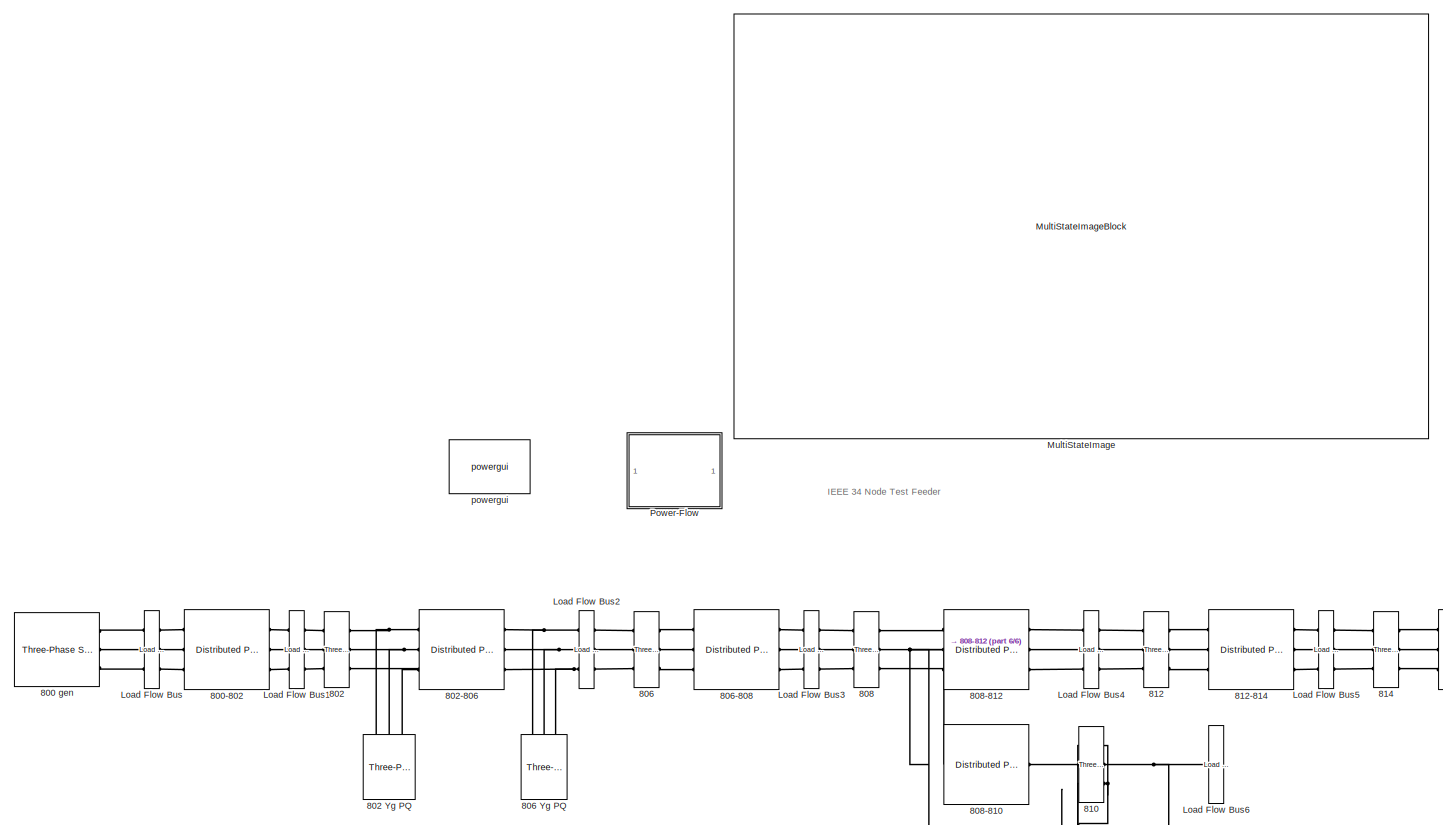
[diagram: root canvas - part 1/6, middle left region]
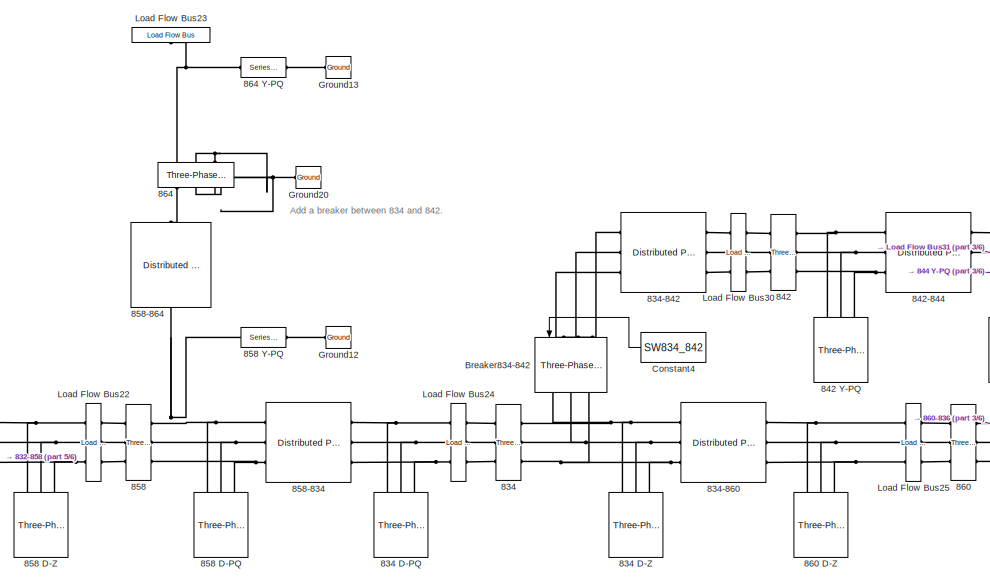
[diagram: root canvas - part 2/6, middle right region]
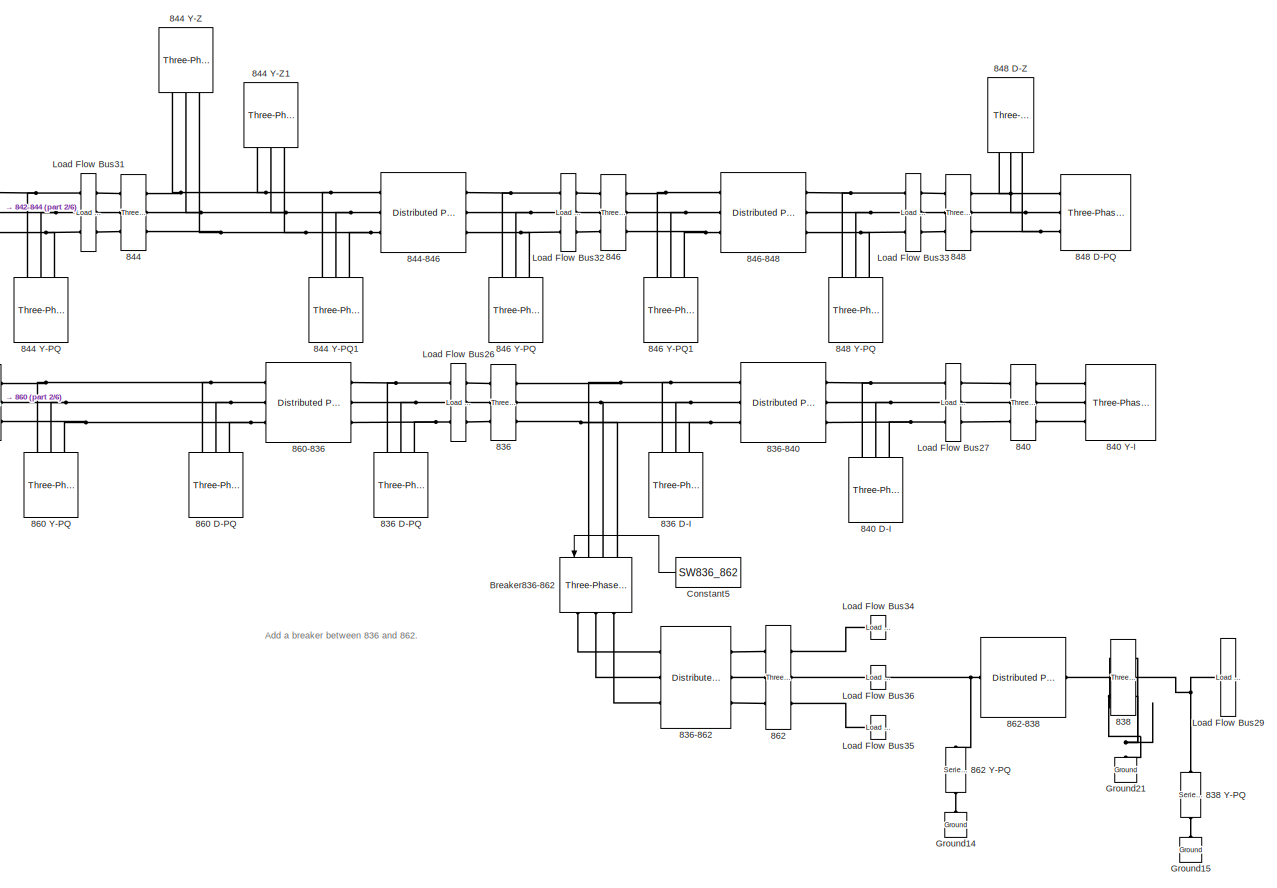
[diagram: root canvas - part 3/6, middle right region]
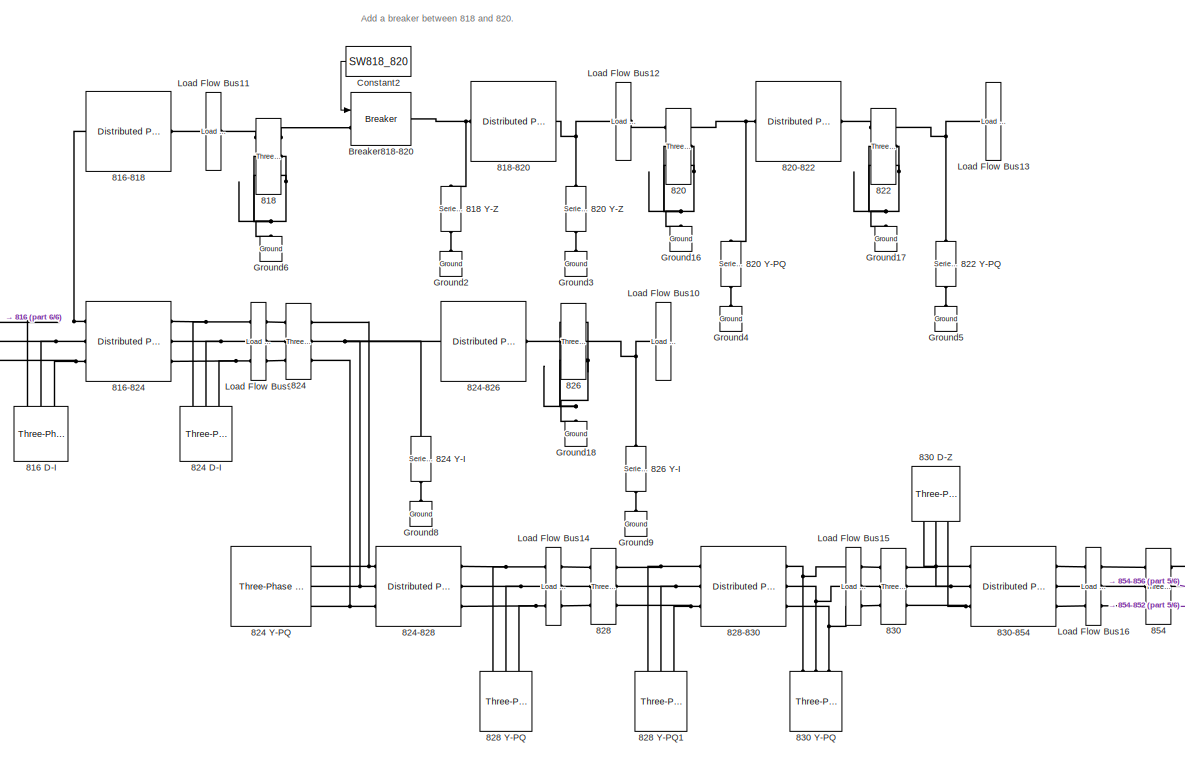
[diagram: root canvas - part 4/6, central region]
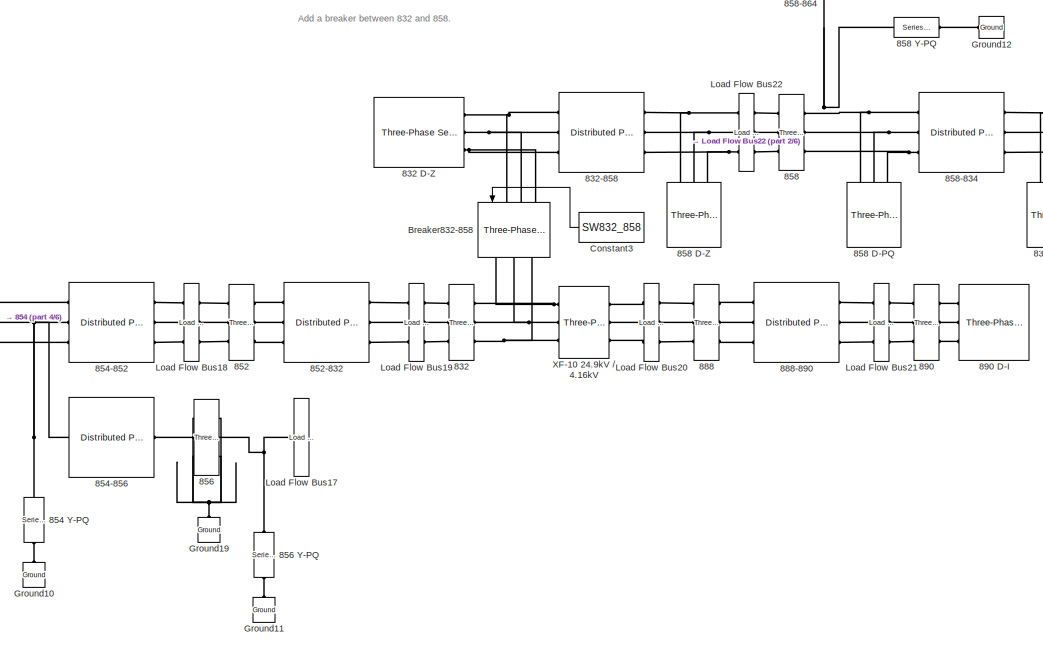
[diagram: root canvas - part 5/6, bottom center region]
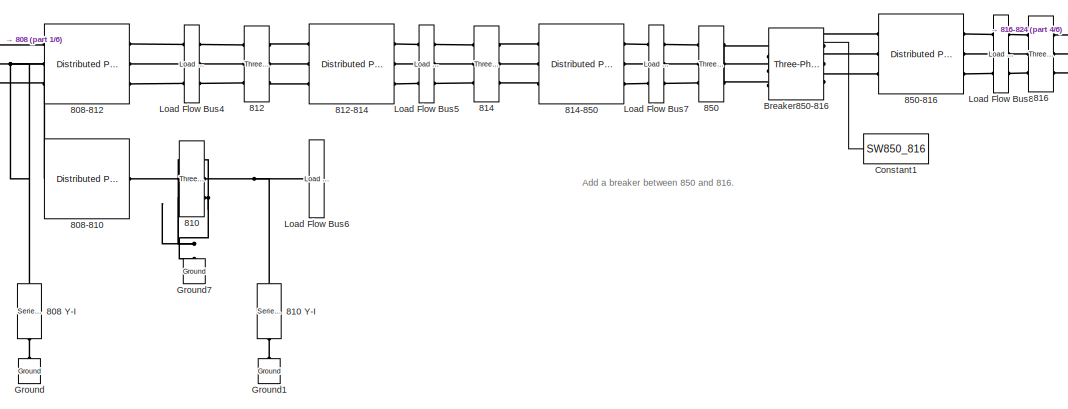
[diagram: root canvas - part 6/6, middle left region]
MODEL slx_d783f9e0f5a4
KIND model
CONFIG AbsTol = auto
CONFIG EnableMultiTasking = off
CONFIG FixedStep = auto
CONFIG InitFcn = power_34NodeTestFeeder_init;\n%=============================\nVnom_ph_ph = 24900;\nVnom = 24900/sqrt(3);\nVnom1_ph_ph = 4160;\nVnom1 = 4160/sqrt(3);\nDegrees_ph_ph_gen1 = 0;\nFrequency = 60;\nApparent_power_gen1 = 2500e3;\nbase_current=1.5e6;\nSW850_816=1;\nSW818_820=1;\nSW832_858=1;\nSW834_842=1;\nSW836_862=1;\n%=============================\n%824-828===Load1=================\nV_824_828 = [1.008 1.016 1.012];\nPa_...<+3203ch>
CONFIG MaxStep = auto
CONFIG MinStep = auto
CONFIG RelTol = 1e-3
CONFIG SampleTimeConstraint = Unconstrained
CONFIG Solver = FixedStepDiscrete
CONFIG SolverName = FixedStepDiscrete
CONFIG StartTime = 0.0
CONFIG StopTime = 0.001
BLOCK [Reference] 800 gen  REF=powerlib/Electrical
Sources/Three-Phase Source
  Ports = [0, 0, 0, 0, 0, 0, 3]
  SourceBlock = powerlib/Electrical\nSources/Three-Phase Source
  SourceProductBaseCode = PS
  SourceType = Three-Phase Source
BLOCK [Reference] 800-802  REF=powerlib/Elements/Distributed Parameters Line
  Ports = [0, 0, 0, 0, 0, 3, 3]
  SourceBlock = powerlib/Elements/Distributed Parameters Line
  SourceProductBaseCode = PS
  SourceType = Distributed Parameters Line
BLOCK [Reference] 802  REF=powerlib/Measurements/Three-Phase
V-I Measurement
  Ports = [0, 0, 0, 0, 0, 3, 3]
  SourceBlock = powerlib/Measurements/Three-Phase\nV-I Measurement
  SourceProductBaseCode = PS
  SourceType = Three-Phase VI Measurement
BLOCK [Reference] 802 Yg PQ  REF=powerlib/Elements/Three-Phase
Series RLC Load
  AttributesFormatString = P= %<Pabc> W\nQl=%<QLabc> var\nQc=%<QCabc> var
  NameLocation = right
  Ports = [0, 0, 0, 0, 0, 3]
  SourceBlock = powerlib/Elements/Three-Phase\nSeries RLC Load
  SourceProductBaseCode = PS
  SourceType = Three-Phase Series RLC Load
BLOCK [Reference] 802-806  REF=powerlib/Elements/Distributed Parameters Line
  Ports = [0, 0, 0, 0, 0, 3, 3]
  SourceBlock = powerlib/Elements/Distributed Parameters Line
  SourceProductBaseCode = PS
  SourceType = Distributed Parameters Line
BLOCK [Reference] 806  REF=powerlib/Measurements/Three-Phase
V-I Measurement
  Ports = [0, 0, 0, 0, 0, 3, 3]
  SourceBlock = powerlib/Measurements/Three-Phase\nV-I Measurement
  SourceProductBaseCode = PS
  SourceType = Three-Phase VI Measurement
BLOCK [Reference] 806 Yg PQ  REF=powerlib/Elements/Three-Phase
Series RLC Load
  AttributesFormatString = P= %<Pabc> W\nQl=%<QLabc> var\nQc=%<QCabc> var
  NameLocation = right
  Ports = [0, 0, 0, 0, 0, 3]
  SourceBlock = powerlib/Elements/Three-Phase\nSeries RLC Load
  SourceProductBaseCode = PS
  SourceType = Three-Phase Series RLC Load
BLOCK [Reference] 806-808  REF=powerlib/Elements/Distributed Parameters Line
  Ports = [0, 0, 0, 0, 0, 3, 3]
  SourceBlock = powerlib/Elements/Distributed Parameters Line
  SourceProductBaseCode = PS
  SourceType = Distributed Parameters Line
BLOCK [Reference] 808  REF=powerlib/Measurements/Three-Phase
V-I Measurement
  Ports = [0, 0, 0, 0, 0, 3, 3]
  SourceBlock = powerlib/Measurements/Three-Phase\nV-I Measurement
  SourceProductBaseCode = PS
  SourceType = Three-Phase VI Measurement
BLOCK [Reference] 808 Y-I  REF=powerlib/Elements/Series RLC Load
  AttributesFormatString = P=%<ActivePower> W\nQl=%<InductivePower> var\nQc=%<CapacitivePower> var
  NameLocation = left
  Ports = [0, 0, 0, 0, 0, 1, 1]
  SourceBlock = powerlib/Elements/Series RLC Load
  SourceProductBaseCode = PS
  SourceType = Series RLC Load
BLOCK [Reference] 808-810  REF=powerlib/Elements/Distributed Parameters Line
  Ports = [0, 0, 0, 0, 0, 1, 1]
  SourceBlock = powerlib/Elements/Distributed Parameters Line
  SourceProductBaseCode = PS
  SourceType = Distributed Parameters Line
BLOCK [Reference] 808-812  REF=powerlib/Elements/Distributed Parameters Line
  Ports = [0, 0, 0, 0, 0, 3, 3]
  SourceBlock = powerlib/Elements/Distributed Parameters Line
  SourceProductBaseCode = PS
  SourceType = Distributed Parameters Line
BLOCK [Reference] 810  REF=powerlib/Measurements/Three-Phase
V-I Measurement
  Ports = [0, 0, 0, 0, 0, 3, 3]
  SourceBlock = powerlib/Measurements/Three-Phase\nV-I Measurement
  SourceProductBaseCode = PS
  SourceType = Three-Phase VI Measurement
BLOCK [Reference] 810 Y-I  REF=powerlib/Elements/Series RLC Load
  AttributesFormatString = P=%<ActivePower> W\nQl=%<InductivePower> var\nQc=%<CapacitivePower> var
  NameLocation = left
  Ports = [0, 0, 0, 0, 0, 1, 1]
  SourceBlock = powerlib/Elements/Series RLC Load
  SourceProductBaseCode = PS
  SourceType = Series RLC Load
BLOCK [Reference] 812  REF=powerlib/Measurements/Three-Phase
V-I Measurement
  Ports = [0, 0, 0, 0, 0, 3, 3]
  SourceBlock = powerlib/Measurements/Three-Phase\nV-I Measurement
  SourceProductBaseCode = PS
  SourceType = Three-Phase VI Measurement
BLOCK [Reference] 812-814  REF=powerlib/Elements/Distributed Parameters Line
  Ports = [0, 0, 0, 0, 0, 3, 3]
  SourceBlock = powerlib/Elements/Distributed Parameters Line
  SourceProductBaseCode = PS
  SourceType = Distributed Parameters Line
BLOCK [Reference] 814  REF=powerlib/Measurements/Three-Phase
V-I Measurement
  Ports = [0, 0, 0, 0, 0, 3, 3]
  SourceBlock = powerlib/Measurements/Three-Phase\nV-I Measurement
  SourceProductBaseCode = PS
  SourceType = Three-Phase VI Measurement
BLOCK [Reference] 814-850  REF=powerlib/Elements/Distributed Parameters Line
  Ports = [0, 0, 0, 0, 0, 3, 3]
  SourceBlock = powerlib/Elements/Distributed Parameters Line
  SourceProductBaseCode = PS
  SourceType = Distributed Parameters Line
BLOCK [Reference] 816  REF=powerlib/Measurements/Three-Phase
V-I Measurement
  Ports = [0, 0, 0, 0, 0, 3, 3]
  SourceBlock = powerlib/Measurements/Three-Phase\nV-I Measurement
  SourceProductBaseCode = PS
  SourceType = Three-Phase VI Measurement
BLOCK [Reference] 816 D-I  REF=powerlib/Elements/Three-Phase
Series RLC Load
  AttributesFormatString = P= %<Pabc> W\nQl=%<QLabc> var\nQc=%<QCabc> var
  NameLocation = right
  Ports = [0, 0, 0, 0, 0, 3]
  SourceBlock = powerlib/Elements/Three-Phase\nSeries RLC Load
  SourceProductBaseCode = PS
  SourceType = Three-Phase Series RLC Load
BLOCK [Reference] 816-818  REF=powerlib/Elements/Distributed Parameters Line
  Ports = [0, 0, 0, 0, 0, 1, 1]
  SourceBlock = powerlib/Elements/Distributed Parameters Line
  SourceProductBaseCode = PS
  SourceType = Distributed Parameters Line
BLOCK [Reference] 816-824  REF=powerlib/Elements/Distributed Parameters Line
  Ports = [0, 0, 0, 0, 0, 3, 3]
  SourceBlock = powerlib/Elements/Distributed Parameters Line
  SourceProductBaseCode = PS
  SourceType = Distributed Parameters Line
BLOCK [Reference] 818  REF=powerlib/Measurements/Three-Phase
V-I Measurement
  Ports = [0, 0, 0, 0, 0, 3, 3]
  SourceBlock = powerlib/Measurements/Three-Phase\nV-I Measurement
  SourceProductBaseCode = PS
  SourceType = Three-Phase VI Measurement
BLOCK [Reference] 818 Y-Z  REF=powerlib/Elements/Series RLC Load
  AttributesFormatString = P=%<ActivePower> W\nQl=%<InductivePower> var\nQc=%<CapacitivePower> var
  NameLocation = left
  Ports = [0, 0, 0, 0, 0, 1, 1]
  SourceBlock = powerlib/Elements/Series RLC Load
  SourceProductBaseCode = PS
  SourceType = Series RLC Load
BLOCK [Reference] 818-820  REF=powerlib/Elements/Distributed Parameters Line
  Ports = [0, 0, 0, 0, 0, 1, 1]
  SourceBlock = powerlib/Elements/Distributed Parameters Line
  SourceProductBaseCode = PS
  SourceType = Distributed Parameters Line
BLOCK [Reference] 820  REF=powerlib/Measurements/Three-Phase
V-I Measurement
  Ports = [0, 0, 0, 0, 0, 3, 3]
  SourceBlock = powerlib/Measurements/Three-Phase\nV-I Measurement
  SourceProductBaseCode = PS
  SourceType = Three-Phase VI Measurement
BLOCK [Reference] 820 Y-PQ  REF=powerlib/Elements/Series RLC Load
  AttributesFormatString = P=%<ActivePower> W\nQl=%<InductivePower> var\nQc=%<CapacitivePower> var
  NameLocation = left
  Ports = [0, 0, 0, 0, 0, 1, 1]
  SourceBlock = powerlib/Elements/Series RLC Load
  SourceProductBaseCode = PS
  SourceType = Series RLC Load
BLOCK [Reference] 820 Y-Z  REF=powerlib/Elements/Series RLC Load
  AttributesFormatString = P=%<ActivePower> W\nQl=%<InductivePower> var\nQc=%<CapacitivePower> var
  NameLocation = left
  Ports = [0, 0, 0, 0, 0, 1, 1]
  SourceBlock = powerlib/Elements/Series RLC Load
  SourceProductBaseCode = PS
  SourceType = Series RLC Load
BLOCK [Reference] 820-822  REF=powerlib/Elements/Distributed Parameters Line
  Ports = [0, 0, 0, 0, 0, 1, 1]
  SourceBlock = powerlib/Elements/Distributed Parameters Line
  SourceProductBaseCode = PS
  SourceType = Distributed Parameters Line
BLOCK [Reference] 822  REF=powerlib/Measurements/Three-Phase
V-I Measurement
  Ports = [0, 0, 0, 0, 0, 3, 3]
  SourceBlock = powerlib/Measurements/Three-Phase\nV-I Measurement
  SourceProductBaseCode = PS
  SourceType = Three-Phase VI Measurement
BLOCK [Reference] 822 Y-PQ  REF=powerlib/Elements/Series RLC Load
  AttributesFormatString = P=%<ActivePower> W\nQl=%<InductivePower> var\nQc=%<CapacitivePower> var
  NameLocation = left
  Ports = [0, 0, 0, 0, 0, 1, 1]
  SourceBlock = powerlib/Elements/Series RLC Load
  SourceProductBaseCode = PS
  SourceType = Series RLC Load
BLOCK [Reference] 824  REF=powerlib/Measurements/Three-Phase
V-I Measurement
  Ports = [0, 0, 0, 0, 0, 3, 3]
  SourceBlock = powerlib/Measurements/Three-Phase\nV-I Measurement
  SourceProductBaseCode = PS
  SourceType = Three-Phase VI Measurement
BLOCK [Reference] 824 D-I  REF=powerlib/Elements/Three-Phase
Series RLC Load
  AttributesFormatString = P= %<Pabc> W\nQl=%<QLabc> var\nQc=%<QCabc> var
  NameLocation = right
  Ports = [0, 0, 0, 0, 0, 3]
  SourceBlock = powerlib/Elements/Three-Phase\nSeries RLC Load
  SourceProductBaseCode = PS
  SourceType = Three-Phase Series RLC Load
BLOCK [Reference] 824 Y-I  REF=powerlib/Elements/Series RLC Load
  AttributesFormatString = P=%<ActivePower> W\nQl=%<InductivePower> var\nQc=%<CapacitivePower> var
  NameLocation = left
  Ports = [0, 0, 0, 0, 0, 1, 1]
  SourceBlock = powerlib/Elements/Series RLC Load
  SourceProductBaseCode = PS
  SourceType = Series RLC Load
BLOCK [Reference] 824 Y-PQ  REF=powerlib/Elements/Three-Phase
Series RLC Load
  AttributesFormatString = P= %<Pabc> W\nQl=%<QLabc> var\nQc=%<QCabc> var
  Ports = [0, 0, 0, 0, 0, 3]
  SourceBlock = powerlib/Elements/Three-Phase\nSeries RLC Load
  SourceProductBaseCode = PS
  SourceType = Three-Phase Series RLC Load
BLOCK [Reference] 824-826  REF=powerlib/Elements/Distributed Parameters Line
  Ports = [0, 0, 0, 0, 0, 1, 1]
  SourceBlock = powerlib/Elements/Distributed Parameters Line
  SourceProductBaseCode = PS
  SourceType = Distributed Parameters Line
BLOCK [Reference] 824-828  REF=powerlib/Elements/Distributed Parameters Line
  Ports = [0, 0, 0, 0, 0, 3, 3]
  SourceBlock = powerlib/Elements/Distributed Parameters Line
  SourceProductBaseCode = PS
  SourceType = Distributed Parameters Line
BLOCK [Reference] 826  REF=powerlib/Measurements/Three-Phase
V-I Measurement
  Ports = [0, 0, 0, 0, 0, 3, 3]
  SourceBlock = powerlib/Measurements/Three-Phase\nV-I Measurement
  SourceProductBaseCode = PS
  SourceType = Three-Phase VI Measurement
BLOCK [Reference] 826 Y-I  REF=powerlib/Elements/Series RLC Load
  AttributesFormatString = P=%<ActivePower> W\nQl=%<InductivePower> var\nQc=%<CapacitivePower> var
  NameLocation = left
  Ports = [0, 0, 0, 0, 0, 1, 1]
  SourceBlock = powerlib/Elements/Series RLC Load
  SourceProductBaseCode = PS
  SourceType = Series RLC Load
BLOCK [Reference] 828  REF=powerlib/Measurements/Three-Phase
V-I Measurement
  Ports = [0, 0, 0, 0, 0, 3, 3]
  SourceBlock = powerlib/Measurements/Three-Phase\nV-I Measurement
  SourceProductBaseCode = PS
  SourceType = Three-Phase VI Measurement
BLOCK [Reference] 828 Y-PQ  REF=powerlib/Elements/Three-Phase
Series RLC Load
  AttributesFormatString = P= %<Pabc> W\nQl=%<QLabc> var\nQc=%<QCabc> var
  NameLocation = right
  Ports = [0, 0, 0, 0, 0, 3]
  SourceBlock = powerlib/Elements/Three-Phase\nSeries RLC Load
  SourceProductBaseCode = PS
  SourceType = Three-Phase Series RLC Load
BLOCK [Reference] 828 Y-PQ1  REF=powerlib/Elements/Three-Phase
Series RLC Load
  AttributesFormatString = P= %<Pabc> W\nQl=%<QLabc> var\nQc=%<QCabc> var
  NameLocation = right
  Ports = [0, 0, 0, 0, 0, 3]
  SourceBlock = powerlib/Elements/Three-Phase\nSeries RLC Load
  SourceProductBaseCode = PS
  SourceType = Three-Phase Series RLC Load
BLOCK [Reference] 828-830  REF=powerlib/Elements/Distributed Parameters Line
  Ports = [0, 0, 0, 0, 0, 3, 3]
  SourceBlock = powerlib/Elements/Distributed Parameters Line
  SourceProductBaseCode = PS
  SourceType = Distributed Parameters Line
BLOCK [Reference] 830  REF=powerlib/Measurements/Three-Phase
V-I Measurement
  Ports = [0, 0, 0, 0, 0, 3, 3]
  SourceBlock = powerlib/Measurements/Three-Phase\nV-I Measurement
  SourceProductBaseCode = PS
  SourceType = Three-Phase VI Measurement
BLOCK [Reference] 830 D-Z  REF=powerlib/Elements/Three-Phase
Series RLC Load
  AttributesFormatString = P= %<Pabc> W\nQl=%<QLabc> var\nQc=%<QCabc> var
  NameLocation = left
  Ports = [0, 0, 0, 0, 0, 3]
  SourceBlock = powerlib/Elements/Three-Phase\nSeries RLC Load
  SourceProductBaseCode = PS
  SourceType = Three-Phase Series RLC Load
BLOCK [Reference] 830 Y-PQ  REF=powerlib/Elements/Three-Phase
Series RLC Load
  AttributesFormatString = P= %<Pabc> W\nQl=%<QLabc> var\nQc=%<QCabc> var
  NameLocation = right
  Ports = [0, 0, 0, 0, 0, 3]
  SourceBlock = powerlib/Elements/Three-Phase\nSeries RLC Load
  SourceProductBaseCode = PS
  SourceType = Three-Phase Series RLC Load
BLOCK [Reference] 830-854  REF=powerlib/Elements/Distributed Parameters Line
  Ports = [0, 0, 0, 0, 0, 3, 3]
  SourceBlock = powerlib/Elements/Distributed Parameters Line
  SourceProductBaseCode = PS
  SourceType = Distributed Parameters Line
BLOCK [Reference] 832  REF=powerlib/Measurements/Three-Phase
V-I Measurement
  Ports = [0, 0, 0, 0, 0, 3, 3]
  SourceBlock = powerlib/Measurements/Three-Phase\nV-I Measurement
  SourceProductBaseCode = PS
  SourceType = Three-Phase VI Measurement
BLOCK [Reference] 832 D-Z  REF=powerlib/Elements/Three-Phase
Series RLC Load
  AttributesFormatString = P= %<Pabc> W\nQl=%<QLabc> var\nQc=%<QCabc> var
  Ports = [0, 0, 0, 0, 0, 3]
  SourceBlock = powerlib/Elements/Three-Phase\nSeries RLC Load
  SourceProductBaseCode = PS
  SourceType = Three-Phase Series RLC Load
BLOCK [Reference] 832-858  REF=powerlib/Elements/Distributed Parameters Line
  Ports = [0, 0, 0, 0, 0, 3, 3]
  SourceBlock = powerlib/Elements/Distributed Parameters Line
  SourceProductBaseCode = PS
  SourceType = Distributed Parameters Line
BLOCK [Reference] 834  REF=powerlib/Measurements/Three-Phase
V-I Measurement
  Ports = [0, 0, 0, 0, 0, 3, 3]
  SourceBlock = powerlib/Measurements/Three-Phase\nV-I Measurement
  SourceProductBaseCode = PS
  SourceType = Three-Phase VI Measurement
BLOCK [Reference] 834 D-PQ  REF=powerlib/Elements/Three-Phase
Series RLC Load
  AttributesFormatString = P= %<Pabc> W\nQl=%<QLabc> var\nQc=%<QCabc> var
  NameLocation = right
  Ports = [0, 0, 0, 0, 0, 3]
  SourceBlock = powerlib/Elements/Three-Phase\nSeries RLC Load
  SourceProductBaseCode = PS
  SourceType = Three-Phase Series RLC Load
BLOCK [Reference] 834 D-Z  REF=powerlib/Elements/Three-Phase
Series RLC Load
  AttributesFormatString = P= %<Pabc> W\nQl=%<QLabc> var\nQc=%<QCabc> var
  NameLocation = right
  Ports = [0, 0, 0, 0, 0, 3]
  SourceBlock = powerlib/Elements/Three-Phase\nSeries RLC Load
  SourceProductBaseCode = PS
  SourceType = Three-Phase Series RLC Load
BLOCK [Reference] 834-842  REF=powerlib/Elements/Distributed Parameters Line
  Ports = [0, 0, 0, 0, 0, 3, 3]
  SourceBlock = powerlib/Elements/Distributed Parameters Line
  SourceProductBaseCode = PS
  SourceType = Distributed Parameters Line
BLOCK [Reference] 834-860  REF=powerlib/Elements/Distributed Parameters Line
  Ports = [0, 0, 0, 0, 0, 3, 3]
  SourceBlock = powerlib/Elements/Distributed Parameters Line
  SourceProductBaseCode = PS
  SourceType = Distributed Parameters Line
BLOCK [Reference] 836  REF=powerlib/Measurements/Three-Phase
V-I Measurement
  Ports = [0, 0, 0, 0, 0, 3, 3]
  SourceBlock = powerlib/Measurements/Three-Phase\nV-I Measurement
  SourceProductBaseCode = PS
  SourceType = Three-Phase VI Measurement
BLOCK [Reference] 836 D-I  REF=powerlib/Elements/Three-Phase
Series RLC Load
  AttributesFormatString = P= %<Pabc> W\nQl=%<QLabc> var\nQc=%<QCabc> var
  NameLocation = right
  Ports = [0, 0, 0, 0, 0, 3]
  SourceBlock = powerlib/Elements/Three-Phase\nSeries RLC Load
  SourceProductBaseCode = PS
  SourceType = Three-Phase Series RLC Load
BLOCK [Reference] 836 D-PQ  REF=powerlib/Elements/Three-Phase
Series RLC Load
  AttributesFormatString = P= %<Pabc> W\nQl=%<QLabc> var\nQc=%<QCabc> var
  NameLocation = right
  Ports = [0, 0, 0, 0, 0, 3]
  SourceBlock = powerlib/Elements/Three-Phase\nSeries RLC Load
  SourceProductBaseCode = PS
  SourceType = Three-Phase Series RLC Load
BLOCK [Reference] 836-840  REF=powerlib/Elements/Distributed Parameters Line
  Ports = [0, 0, 0, 0, 0, 3, 3]
  SourceBlock = powerlib/Elements/Distributed Parameters Line
  SourceProductBaseCode = PS
  SourceType = Distributed Parameters Line
BLOCK [Reference] 836-862  REF=powerlib/Elements/Distributed Parameters Line
  Ports = [0, 0, 0, 0, 0, 3, 3]
  SourceBlock = powerlib/Elements/Distributed Parameters Line
  SourceProductBaseCode = PS
  SourceType = Distributed Parameters Line
BLOCK [Reference] 838  REF=powerlib/Measurements/Three-Phase
V-I Measurement
  Ports = [0, 0, 0, 0, 0, 3, 3]
  SourceBlock = powerlib/Measurements/Three-Phase\nV-I Measurement
  SourceProductBaseCode = PS
  SourceType = Three-Phase VI Measurement
BLOCK [Reference] 838 Y-PQ  REF=powerlib/Elements/Series RLC Load
  AttributesFormatString = P=%<ActivePower> W\nQl=%<InductivePower> var\nQc=%<CapacitivePower> var
  NameLocation = left
  Ports = [0, 0, 0, 0, 0, 1, 1]
  SourceBlock = powerlib/Elements/Series RLC Load
  SourceProductBaseCode = PS
  SourceType = Series RLC Load
BLOCK [Reference] 840  REF=powerlib/Measurements/Three-Phase
V-I Measurement
  Ports = [0, 0, 0, 0, 0, 3, 3]
  SourceBlock = powerlib/Measurements/Three-Phase\nV-I Measurement
  SourceProductBaseCode = PS
  SourceType = Three-Phase VI Measurement
BLOCK [Reference] 840 D-I  REF=powerlib/Elements/Three-Phase
Series RLC Load
  AttributesFormatString = P= %<Pabc> W\nQl=%<QLabc> var\nQc=%<QCabc> var
  NameLocation = right
  Ports = [0, 0, 0, 0, 0, 3]
  SourceBlock = powerlib/Elements/Three-Phase\nSeries RLC Load
  SourceProductBaseCode = PS
  SourceType = Three-Phase Series RLC Load
BLOCK [Reference] 840 Y-I  REF=powerlib/Elements/Three-Phase
Series RLC Load
  AttributesFormatString = P= %<Pabc> W\nQl=%<QLabc> var\nQc=%<QCabc> var
  NameLocation = top
  Ports = [0, 0, 0, 0, 0, 3]
  SourceBlock = powerlib/Elements/Three-Phase\nSeries RLC Load
  SourceProductBaseCode = PS
  SourceType = Three-Phase Series RLC Load
BLOCK [Reference] 842  REF=powerlib/Measurements/Three-Phase
V-I Measurement
  Ports = [0, 0, 0, 0, 0, 3, 3]
  SourceBlock = powerlib/Measurements/Three-Phase\nV-I Measurement
  SourceProductBaseCode = PS
  SourceType = Three-Phase VI Measurement
BLOCK [Reference] 842 Y-PQ  REF=powerlib/Elements/Three-Phase
Series RLC Load
  AttributesFormatString = P= %<Pabc> W\nQl=%<QLabc> var\nQc=%<QCabc> var
  NameLocation = right
  Ports = [0, 0, 0, 0, 0, 3]
  SourceBlock = powerlib/Elements/Three-Phase\nSeries RLC Load
  SourceProductBaseCode = PS
  SourceType = Three-Phase Series RLC Load
BLOCK [Reference] 842-844  REF=powerlib/Elements/Distributed Parameters Line
  Ports = [0, 0, 0, 0, 0, 3, 3]
  SourceBlock = powerlib/Elements/Distributed Parameters Line
  SourceProductBaseCode = PS
  SourceType = Distributed Parameters Line
BLOCK [Reference] 844  REF=powerlib/Measurements/Three-Phase
V-I Measurement
  Ports = [0, 0, 0, 0, 0, 3, 3]
  SourceBlock = powerlib/Measurements/Three-Phase\nV-I Measurement
  SourceProductBaseCode = PS
  SourceType = Three-Phase VI Measurement
BLOCK [Reference] 844 Y-PQ  REF=powerlib/Elements/Three-Phase
Series RLC Load
  AttributesFormatString = P= %<Pabc> W\nQl=%<QLabc> var\nQc=%<QCabc> var
  NameLocation = right
  Ports = [0, 0, 0, 0, 0, 3]
  SourceBlock = powerlib/Elements/Three-Phase\nSeries RLC Load
  SourceProductBaseCode = PS
  SourceType = Three-Phase Series RLC Load
BLOCK [Reference] 844 Y-PQ1  REF=powerlib/Elements/Three-Phase
Series RLC Load
  AttributesFormatString = P= %<Pabc> W\nQl=%<QLabc> var\nQc=%<QCabc> var
  NameLocation = right
  Ports = [0, 0, 0, 0, 0, 3]
  SourceBlock = powerlib/Elements/Three-Phase\nSeries RLC Load
  SourceProductBaseCode = PS
  SourceType = Three-Phase Series RLC Load
BLOCK [Reference] 844 Y-Z  REF=powerlib/Elements/Three-Phase
Series RLC Load
  AttributesFormatString = P= %<Pabc> W\nQl=%<QLabc> var\nQc=%<QCabc> var
  NameLocation = left
  Ports = [0, 0, 0, 0, 0, 3]
  SourceBlock = powerlib/Elements/Three-Phase\nSeries RLC Load
  SourceProductBaseCode = PS
  SourceType = Three-Phase Series RLC Load
BLOCK [Reference] 844 Y-Z1  REF=powerlib/Elements/Three-Phase
Series RLC Load
  AttributesFormatString = P= %<Pabc> W\nQl=%<QLabc> var\nQc=%<QCabc> var
  NameLocation = left
  Ports = [0, 0, 0, 0, 0, 3]
  SourceBlock = powerlib/Elements/Three-Phase\nSeries RLC Load
  SourceProductBaseCode = PS
  SourceType = Three-Phase Series RLC Load
BLOCK [Reference] 844-846  REF=powerlib/Elements/Distributed Parameters Line
  Ports = [0, 0, 0, 0, 0, 3, 3]
  SourceBlock = powerlib/Elements/Distributed Parameters Line
  SourceProductBaseCode = PS
  SourceType = Distributed Parameters Line
BLOCK [Reference] 846  REF=powerlib/Measurements/Three-Phase
V-I Measurement
  Ports = [0, 0, 0, 0, 0, 3, 3]
  SourceBlock = powerlib/Measurements/Three-Phase\nV-I Measurement
  SourceProductBaseCode = PS
  SourceType = Three-Phase VI Measurement
BLOCK [Reference] 846 Y-PQ  REF=powerlib/Elements/Three-Phase
Series RLC Load
  AttributesFormatString = P= %<Pabc> W\nQl=%<QLabc> var\nQc=%<QCabc> var
  NameLocation = right
  Ports = [0, 0, 0, 0, 0, 3]
  SourceBlock = powerlib/Elements/Three-Phase\nSeries RLC Load
  SourceProductBaseCode = PS
  SourceType = Three-Phase Series RLC Load
BLOCK [Reference] 846 Y-PQ1  REF=powerlib/Elements/Three-Phase
Series RLC Load
  AttributesFormatString = P= %<Pabc> W\nQl=%<QLabc> var\nQc=%<QCabc> var
  NameLocation = right
  Ports = [0, 0, 0, 0, 0, 3]
  SourceBlock = powerlib/Elements/Three-Phase\nSeries RLC Load
  SourceProductBaseCode = PS
  SourceType = Three-Phase Series RLC Load
BLOCK [Reference] 846-848  REF=powerlib/Elements/Distributed Parameters Line
  Ports = [0, 0, 0, 0, 0, 3, 3]
  SourceBlock = powerlib/Elements/Distributed Parameters Line
  SourceProductBaseCode = PS
  SourceType = Distributed Parameters Line
BLOCK [Reference] 848  REF=powerlib/Measurements/Three-Phase
V-I Measurement
  Ports = [0, 0, 0, 0, 0, 3, 3]
  SourceBlock = powerlib/Measurements/Three-Phase\nV-I Measurement
  SourceProductBaseCode = PS
  SourceType = Three-Phase VI Measurement
BLOCK [Reference] 848 D-PQ  REF=powerlib/Elements/Three-Phase
Series RLC Load
  AttributesFormatString = P= %<Pabc> W\nQl=%<QLabc> var\nQc=%<QCabc> var
  NameLocation = top
  Ports = [0, 0, 0, 0, 0, 3]
  SourceBlock = powerlib/Elements/Three-Phase\nSeries RLC Load
  SourceProductBaseCode = PS
  SourceType = Three-Phase Series RLC Load
BLOCK [Reference] 848 D-Z  REF=powerlib/Elements/Three-Phase
Series RLC Load
  AttributesFormatString = P= %<Pabc> W\nQl=%<QLabc> var\nQc=%<QCabc> var
  NameLocation = left
  Ports = [0, 0, 0, 0, 0, 3]
  SourceBlock = powerlib/Elements/Three-Phase\nSeries RLC Load
  SourceProductBaseCode = PS
  SourceType = Three-Phase Series RLC Load
BLOCK [Reference] 848 Y-PQ  REF=powerlib/Elements/Three-Phase
Series RLC Load
  AttributesFormatString = P= %<Pabc> W\nQl=%<QLabc> var\nQc=%<QCabc> var
  NameLocation = right
  Ports = [0, 0, 0, 0, 0, 3]
  SourceBlock = powerlib/Elements/Three-Phase\nSeries RLC Load
  SourceProductBaseCode = PS
  SourceType = Three-Phase Series RLC Load
BLOCK [Reference] 850  REF=powerlib/Measurements/Three-Phase
V-I Measurement
  Ports = [0, 0, 0, 0, 0, 3, 3]
  SourceBlock = powerlib/Measurements/Three-Phase\nV-I Measurement
  SourceProductBaseCode = PS
  SourceType = Three-Phase VI Measurement
BLOCK [Reference] 850-816  REF=powerlib/Elements/Distributed Parameters Line
  Ports = [0, 0, 0, 0, 0, 3, 3]
  SourceBlock = powerlib/Elements/Distributed Parameters Line
  SourceProductBaseCode = PS
  SourceType = Distributed Parameters Line
BLOCK [Reference] 852  REF=powerlib/Measurements/Three-Phase
V-I Measurement
  Ports = [0, 0, 0, 0, 0, 3, 3]
  SourceBlock = powerlib/Measurements/Three-Phase\nV-I Measurement
  SourceProductBaseCode = PS
  SourceType = Three-Phase VI Measurement
BLOCK [Reference] 852-832  REF=powerlib/Elements/Distributed Parameters Line
  Ports = [0, 0, 0, 0, 0, 3, 3]
  SourceBlock = powerlib/Elements/Distributed Parameters Line
  SourceProductBaseCode = PS
  SourceType = Distributed Parameters Line
BLOCK [Reference] 854  REF=powerlib/Measurements/Three-Phase
V-I Measurement
  Ports = [0, 0, 0, 0, 0, 3, 3]
  SourceBlock = powerlib/Measurements/Three-Phase\nV-I Measurement
  SourceProductBaseCode = PS
  SourceType = Three-Phase VI Measurement
BLOCK [Reference] 854 Y-PQ  REF=powerlib/Elements/Series RLC Load
  AttributesFormatString = P=%<ActivePower> W\nQl=%<InductivePower> var\nQc=%<CapacitivePower> var
  NameLocation = left
  Ports = [0, 0, 0, 0, 0, 1, 1]
  SourceBlock = powerlib/Elements/Series RLC Load
  SourceProductBaseCode = PS
  SourceType = Series RLC Load
BLOCK [Reference] 854-852  REF=powerlib/Elements/Distributed Parameters Line
  Ports = [0, 0, 0, 0, 0, 3, 3]
  SourceBlock = powerlib/Elements/Distributed Parameters Line
  SourceProductBaseCode = PS
  SourceType = Distributed Parameters Line
BLOCK [Reference] 854-856  REF=powerlib/Elements/Distributed Parameters Line
  Ports = [0, 0, 0, 0, 0, 1, 1]
  SourceBlock = powerlib/Elements/Distributed Parameters Line
  SourceProductBaseCode = PS
  SourceType = Distributed Parameters Line
BLOCK [Reference] 856  REF=powerlib/Measurements/Three-Phase
V-I Measurement
  Ports = [0, 0, 0, 0, 0, 3, 3]
  SourceBlock = powerlib/Measurements/Three-Phase\nV-I Measurement
  SourceProductBaseCode = PS
  SourceType = Three-Phase VI Measurement
BLOCK [Reference] 856 Y-PQ  REF=powerlib/Elements/Series RLC Load
  AttributesFormatString = P=%<ActivePower> W\nQl=%<InductivePower> var\nQc=%<CapacitivePower> var
  NameLocation = left
  Ports = [0, 0, 0, 0, 0, 1, 1]
  SourceBlock = powerlib/Elements/Series RLC Load
  SourceProductBaseCode = PS
  SourceType = Series RLC Load
BLOCK [Reference] 858  REF=powerlib/Measurements/Three-Phase
V-I Measurement
  Ports = [0, 0, 0, 0, 0, 3, 3]
  SourceBlock = powerlib/Measurements/Three-Phase\nV-I Measurement
  SourceProductBaseCode = PS
  SourceType = Three-Phase VI Measurement
BLOCK [Reference] 858 D-PQ  REF=powerlib/Elements/Three-Phase
Series RLC Load
  AttributesFormatString = P= %<Pabc> W\nQl=%<QLabc> var\nQc=%<QCabc> var
  NameLocation = right
  Ports = [0, 0, 0, 0, 0, 3]
  SourceBlock = powerlib/Elements/Three-Phase\nSeries RLC Load
  SourceProductBaseCode = PS
  SourceType = Three-Phase Series RLC Load
BLOCK [Reference] 858 D-Z  REF=powerlib/Elements/Three-Phase
Series RLC Load
  AttributesFormatString = P= %<Pabc> W\nQl=%<QLabc> var\nQc=%<QCabc> var
  NameLocation = right
  Ports = [0, 0, 0, 0, 0, 3]
  SourceBlock = powerlib/Elements/Three-Phase\nSeries RLC Load
  SourceProductBaseCode = PS
  SourceType = Three-Phase Series RLC Load
BLOCK [Reference] 858 Y-PQ  REF=powerlib/Elements/Series RLC Load
  AttributesFormatString = P=%<ActivePower> W\nQl=%<InductivePower> var\nQc=%<CapacitivePower> var
  Ports = [0, 0, 0, 0, 0, 1, 1]
  SourceBlock = powerlib/Elements/Series RLC Load
  SourceProductBaseCode = PS
  SourceType = Series RLC Load
BLOCK [Reference] 858-834  REF=powerlib/Elements/Distributed Parameters Line
  Ports = [0, 0, 0, 0, 0, 3, 3]
  SourceBlock = powerlib/Elements/Distributed Parameters Line
  SourceProductBaseCode = PS
  SourceType = Distributed Parameters Line
BLOCK [Reference] 858-864  REF=powerlib/Elements/Distributed Parameters Line
  NameLocation = right
  Ports = [0, 0, 0, 0, 0, 1, 1]
  SourceBlock = powerlib/Elements/Distributed Parameters Line
  SourceProductBaseCode = PS
  SourceType = Distributed Parameters Line
BLOCK [Reference] 860  REF=powerlib/Measurements/Three-Phase
V-I Measurement
  Ports = [0, 0, 0, 0, 0, 3, 3]
  SourceBlock = powerlib/Measurements/Three-Phase\nV-I Measurement
  SourceProductBaseCode = PS
  SourceType = Three-Phase VI Measurement
BLOCK [Reference] 860 D-PQ  REF=powerlib/Elements/Three-Phase
Series RLC Load
  AttributesFormatString = P= %<Pabc> W\nQl=%<QLabc> var\nQc=%<QCabc> var
  NameLocation = right
  Ports = [0, 0, 0, 0, 0, 3]
  SourceBlock = powerlib/Elements/Three-Phase\nSeries RLC Load
  SourceProductBaseCode = PS
  SourceType = Three-Phase Series RLC Load
BLOCK [Reference] 860 D-Z  REF=powerlib/Elements/Three-Phase
Series RLC Load
  AttributesFormatString = P= %<Pabc> W\nQl=%<QLabc> var\nQc=%<QCabc> var
  NameLocation = right
  Ports = [0, 0, 0, 0, 0, 3]
  SourceBlock = powerlib/Elements/Three-Phase\nSeries RLC Load
  SourceProductBaseCode = PS
  SourceType = Three-Phase Series RLC Load
BLOCK [Reference] 860 Y-PQ  REF=powerlib/Elements/Three-Phase
Series RLC Load
  AttributesFormatString = P= %<Pabc> W\nQl=%<QLabc> var\nQc=%<QCabc> var
  NameLocation = right
  Ports = [0, 0, 0, 0, 0, 3]
  SourceBlock = powerlib/Elements/Three-Phase\nSeries RLC Load
  SourceProductBaseCode = PS
  SourceType = Three-Phase Series RLC Load
BLOCK [Reference] 860-836  REF=powerlib/Elements/Distributed Parameters Line
  Ports = [0, 0, 0, 0, 0, 3, 3]
  SourceBlock = powerlib/Elements/Distributed Parameters Line
  SourceProductBaseCode = PS
  SourceType = Distributed Parameters Line
BLOCK [Reference] 862  REF=powerlib/Measurements/Three-Phase
V-I Measurement
  Ports = [0, 0, 0, 0, 0, 3, 3]
  SourceBlock = powerlib/Measurements/Three-Phase\nV-I Measurement
  SourceProductBaseCode = PS
  SourceType = Three-Phase VI Measurement
BLOCK [Reference] 862 Y-PQ  REF=powerlib/Elements/Series RLC Load
  AttributesFormatString = P=%<ActivePower> W\nQl=%<InductivePower> var\nQc=%<CapacitivePower> var
  NameLocation = left
  Ports = [0, 0, 0, 0, 0, 1, 1]
  SourceBlock = powerlib/Elements/Series RLC Load
  SourceProductBaseCode = PS
  SourceType = Series RLC Load
BLOCK [Reference] 862-838  REF=powerlib/Elements/Distributed Parameters Line
  Ports = [0, 0, 0, 0, 0, 1, 1]
  SourceBlock = powerlib/Elements/Distributed Parameters Line
  SourceProductBaseCode = PS
  SourceType = Distributed Parameters Line
BLOCK [Reference] 864  REF=powerlib/Measurements/Three-Phase
V-I Measurement
  NameLocation = right
  Ports = [0, 0, 0, 0, 0, 3, 3]
  SourceBlock = powerlib/Measurements/Three-Phase\nV-I Measurement
  SourceProductBaseCode = PS
  SourceType = Three-Phase VI Measurement
BLOCK [Reference] 864 Y-PQ  REF=powerlib/Elements/Series RLC Load
  AttributesFormatString = P=%<ActivePower> W\nQl=%<InductivePower> var\nQc=%<CapacitivePower> var
  Ports = [0, 0, 0, 0, 0, 1, 1]
  SourceBlock = powerlib/Elements/Series RLC Load
  SourceProductBaseCode = PS
  SourceType = Series RLC Load
BLOCK [Reference] 888  REF=powerlib/Measurements/Three-Phase
V-I Measurement
  Ports = [0, 0, 0, 0, 0, 3, 3]
  SourceBlock = powerlib/Measurements/Three-Phase\nV-I Measurement
  SourceProductBaseCode = PS
  SourceType = Three-Phase VI Measurement
BLOCK [Reference] 888-890  REF=powerlib/Elements/Distributed Parameters Line
  Ports = [0, 0, 0, 0, 0, 3, 3]
  SourceBlock = powerlib/Elements/Distributed Parameters Line
  SourceProductBaseCode = PS
  SourceType = Distributed Parameters Line
BLOCK [Reference] 890  REF=powerlib/Measurements/Three-Phase
V-I Measurement
  Ports = [0, 0, 0, 0, 0, 3, 3]
  SourceBlock = powerlib/Measurements/Three-Phase\nV-I Measurement
  SourceProductBaseCode = PS
  SourceType = Three-Phase VI Measurement
BLOCK [Reference] 890 D-I  REF=powerlib/Elements/Three-Phase
Series RLC Load
  AttributesFormatString = \n
  NameLocation = top
  Ports = [0, 0, 0, 0, 0, 3]
  SourceBlock = powerlib/Elements/Three-Phase\nSeries RLC Load
  SourceProductBaseCode = PS
  SourceType = Three-Phase Series RLC Load
BLOCK [Reference] Breaker818-820  REF=powerlib/Elements/Breaker
  Ports = [1, 0, 0, 0, 0, 1, 1]
  SourceBlock = powerlib/Elements/Breaker
  SourceProductBaseCode = PS
  SourceType = Breaker
BLOCK [Reference] Breaker832-858  REF=powerlib/Elements/Three-Phase Breaker
  NameLocation = left
  Ports = [1, 0, 0, 0, 0, 3, 3]
  SourceBlock = powerlib/Elements/Three-Phase Breaker
  SourceProductBaseCode = PS
  SourceType = Three-Phase Breaker
BLOCK [Reference] Breaker834-842  REF=powerlib/Elements/Three-Phase Breaker
  NameLocation = left
  Ports = [1, 0, 0, 0, 0, 3, 3]
  SourceBlock = powerlib/Elements/Three-Phase Breaker
  SourceProductBaseCode = PS
  SourceType = Three-Phase Breaker
BLOCK [Reference] Breaker836-862  REF=powerlib/Elements/Three-Phase Breaker
  NameLocation = left
  Ports = [1, 0, 0, 0, 0, 3, 3]
  SourceBlock = powerlib/Elements/Three-Phase Breaker
  SourceProductBaseCode = PS
  SourceType = Three-Phase Breaker
BLOCK [Reference] Breaker850-816  REF=powerlib/Elements/Three-Phase Breaker
  NameLocation = top
  Ports = [1, 0, 0, 0, 0, 3, 3]
  SourceBlock = powerlib/Elements/Three-Phase Breaker
  SourceProductBaseCode = PS
  SourceType = Three-Phase Breaker
BLOCK [Constant] Constant1
  NameLocation = top
  Value = SW850_816
BLOCK [Constant] Constant2
  NameLocation = top
  Value = SW818_820
BLOCK [Constant] Constant3
  NameLocation = top
  Value = SW832_858
BLOCK [Constant] Constant4
  NameLocation = top
  Value = SW834_842
BLOCK [Constant] Constant5
  NameLocation = top
  Value = SW836_862
BLOCK [Reference] Ground  REF=powerlib/Elements/Ground
  NameLocation = right
  Ports = [0, 0, 0, 0, 0, 1]
  SourceBlock = powerlib/Elements/Ground
  SourceProductBaseCode = PS
  SourceType = Ground
BLOCK [Reference] Ground1  REF=powerlib/Elements/Ground
  NameLocation = right
  Ports = [0, 0, 0, 0, 0, 1]
  SourceBlock = powerlib/Elements/Ground
  SourceProductBaseCode = PS
  SourceType = Ground
BLOCK [Reference] Ground10  REF=powerlib/Elements/Ground
  NameLocation = right
  Ports = [0, 0, 0, 0, 0, 1]
  SourceBlock = powerlib/Elements/Ground
  SourceProductBaseCode = PS
  SourceType = Ground
BLOCK [Reference] Ground11  REF=powerlib/Elements/Ground
  NameLocation = right
  Ports = [0, 0, 0, 0, 0, 1]
  SourceBlock = powerlib/Elements/Ground
  SourceProductBaseCode = PS
  SourceType = Ground
BLOCK [Reference] Ground12  REF=powerlib/Elements/Ground
  NameLocation = top
  Ports = [0, 0, 0, 0, 0, 1]
  SourceBlock = powerlib/Elements/Ground
  SourceProductBaseCode = PS
  SourceType = Ground
BLOCK [Reference] Ground13  REF=powerlib/Elements/Ground
  NameLocation = top
  Ports = [0, 0, 0, 0, 0, 1]
  SourceBlock = powerlib/Elements/Ground
  SourceProductBaseCode = PS
  SourceType = Ground
BLOCK [Reference] Ground14  REF=powerlib/Elements/Ground
  NameLocation = right
  Ports = [0, 0, 0, 0, 0, 1]
  SourceBlock = powerlib/Elements/Ground
  SourceProductBaseCode = PS
  SourceType = Ground
BLOCK [Reference] Ground15  REF=powerlib/Elements/Ground
  NameLocation = right
  Ports = [0, 0, 0, 0, 0, 1]
  SourceBlock = powerlib/Elements/Ground
  SourceProductBaseCode = PS
  SourceType = Ground
BLOCK [Reference] Ground16  REF=powerlib/Elements/Ground
  NameLocation = right
  Ports = [0, 0, 0, 0, 0, 1]
  SourceBlock = powerlib/Elements/Ground
  SourceProductBaseCode = PS
  SourceType = Ground
BLOCK [Reference] Ground17  REF=powerlib/Elements/Ground
  NameLocation = right
  Ports = [0, 0, 0, 0, 0, 1]
  SourceBlock = powerlib/Elements/Ground
  SourceProductBaseCode = PS
  SourceType = Ground
BLOCK [Reference] Ground18  REF=powerlib/Elements/Ground
  NameLocation = right
  Ports = [0, 0, 0, 0, 0, 1]
  SourceBlock = powerlib/Elements/Ground
  SourceProductBaseCode = PS
  SourceType = Ground
BLOCK [Reference] Ground19  REF=powerlib/Elements/Ground
  NameLocation = right
  Ports = [0, 0, 0, 0, 0, 1]
  SourceBlock = powerlib/Elements/Ground
  SourceProductBaseCode = PS
  SourceType = Ground
BLOCK [Reference] Ground2  REF=powerlib/Elements/Ground
  NameLocation = right
  Ports = [0, 0, 0, 0, 0, 1]
  SourceBlock = powerlib/Elements/Ground
  SourceProductBaseCode = PS
  SourceType = Ground
BLOCK [Reference] Ground20  REF=powerlib/Elements/Ground
  NameLocation = top
  Ports = [0, 0, 0, 0, 0, 1]
  SourceBlock = powerlib/Elements/Ground
  SourceProductBaseCode = PS
  SourceType = Ground
BLOCK [Reference] Ground21  REF=powerlib/Elements/Ground
  NameLocation = right
  Ports = [0, 0, 0, 0, 0, 1]
  SourceBlock = powerlib/Elements/Ground
  SourceProductBaseCode = PS
  SourceType = Ground
BLOCK [Reference] Ground3  REF=powerlib/Elements/Ground
  NameLocation = right
  Ports = [0, 0, 0, 0, 0, 1]
  SourceBlock = powerlib/Elements/Ground
  SourceProductBaseCode = PS
  SourceType = Ground
BLOCK [Reference] Ground4  REF=powerlib/Elements/Ground
  NameLocation = right
  Ports = [0, 0, 0, 0, 0, 1]
  SourceBlock = powerlib/Elements/Ground
  SourceProductBaseCode = PS
  SourceType = Ground
BLOCK [Reference] Ground5  REF=powerlib/Elements/Ground
  NameLocation = right
  Ports = [0, 0, 0, 0, 0, 1]
  SourceBlock = powerlib/Elements/Ground
  SourceProductBaseCode = PS
  SourceType = Ground
BLOCK [Reference] Ground6  REF=powerlib/Elements/Ground
  NameLocation = right
  Ports = [0, 0, 0, 0, 0, 1]
  SourceBlock = powerlib/Elements/Ground
  SourceProductBaseCode = PS
  SourceType = Ground
BLOCK [Reference] Ground7  REF=powerlib/Elements/Ground
  NameLocation = right
  Ports = [0, 0, 0, 0, 0, 1]
  SourceBlock = powerlib/Elements/Ground
  SourceProductBaseCode = PS
  SourceType = Ground
BLOCK [Reference] Ground8  REF=powerlib/Elements/Ground
  NameLocation = right
  Ports = [0, 0, 0, 0, 0, 1]
  SourceBlock = powerlib/Elements/Ground
  SourceProductBaseCode = PS
  SourceType = Ground
BLOCK [Reference] Ground9  REF=powerlib/Elements/Ground
  NameLocation = right
  Ports = [0, 0, 0, 0, 0, 1]
  SourceBlock = powerlib/Elements/Ground
  SourceProductBaseCode = PS
  SourceType = Ground
BLOCK [Reference] Load Flow Bus  REF=powerlib/Measurements/Load Flow Bus
  AttributesFormatString = %<ID>
  Ports = [0, 0, 0, 0, 0, 3, 3]
  SourceBlock = powerlib/Measurements/Load Flow Bus
  SourceProductBaseCode = PS
  SourceType = Load Flow Bus
BLOCK [Reference] Load Flow Bus1  REF=powerlib/Measurements/Load Flow Bus
  AttributesFormatString = %<ID>
  Ports = [0, 0, 0, 0, 0, 3, 3]
  SourceBlock = powerlib/Measurements/Load Flow Bus
  SourceProductBaseCode = PS
  SourceType = Load Flow Bus
BLOCK [Reference] Load Flow Bus10  REF=powerlib/Measurements/Load Flow Bus
  AttributesFormatString = %<ID>
  Ports = [0, 0, 0, 0, 0, 1]
  SourceBlock = powerlib/Measurements/Load Flow Bus
  SourceProductBaseCode = PS
  SourceType = Load Flow Bus
BLOCK [Reference] Load Flow Bus11  REF=powerlib/Measurements/Load Flow Bus
  AttributesFormatString = %<ID>
  Ports = [0, 0, 0, 0, 0, 1, 1]
  SourceBlock = powerlib/Measurements/Load Flow Bus
  SourceProductBaseCode = PS
  SourceType = Load Flow Bus
BLOCK [Reference] Load Flow Bus12  REF=powerlib/Measurements/Load Flow Bus
  AttributesFormatString = %<ID>
  Ports = [0, 0, 0, 0, 0, 1, 1]
  SourceBlock = powerlib/Measurements/Load Flow Bus
  SourceProductBaseCode = PS
  SourceType = Load Flow Bus
BLOCK [Reference] Load Flow Bus13  REF=powerlib/Measurements/Load Flow Bus
  AttributesFormatString = %<ID>
  Ports = [0, 0, 0, 0, 0, 1]
  SourceBlock = powerlib/Measurements/Load Flow Bus
  SourceProductBaseCode = PS
  SourceType = Load Flow Bus
BLOCK [Reference] Load Flow Bus14  REF=powerlib/Measurements/Load Flow Bus
  AttributesFormatString = %<ID>
  Ports = [0, 0, 0, 0, 0, 3, 3]
  SourceBlock = powerlib/Measurements/Load Flow Bus
  SourceProductBaseCode = PS
  SourceType = Load Flow Bus
BLOCK [Reference] Load Flow Bus15  REF=powerlib/Measurements/Load Flow Bus
  AttributesFormatString = %<ID>
  Ports = [0, 0, 0, 0, 0, 3, 3]
  SourceBlock = powerlib/Measurements/Load Flow Bus
  SourceProductBaseCode = PS
  SourceType = Load Flow Bus
BLOCK [Reference] Load Flow Bus16  REF=powerlib/Measurements/Load Flow Bus
  AttributesFormatString = %<ID>
  Ports = [0, 0, 0, 0, 0, 3, 3]
  SourceBlock = powerlib/Measurements/Load Flow Bus
  SourceProductBaseCode = PS
  SourceType = Load Flow Bus
BLOCK [Reference] Load Flow Bus17  REF=powerlib/Measurements/Load Flow Bus
  AttributesFormatString = %<ID>
  Ports = [0, 0, 0, 0, 0, 1]
  SourceBlock = powerlib/Measurements/Load Flow Bus
  SourceProductBaseCode = PS
  SourceType = Load Flow Bus
BLOCK [Reference] Load Flow Bus18  REF=powerlib/Measurements/Load Flow Bus
  AttributesFormatString = %<ID>
  Ports = [0, 0, 0, 0, 0, 3, 3]
  SourceBlock = powerlib/Measurements/Load Flow Bus
  SourceProductBaseCode = PS
  SourceType = Load Flow Bus
BLOCK [Reference] Load Flow Bus19  REF=powerlib/Measurements/Load Flow Bus
  AttributesFormatString = %<ID>
  Ports = [0, 0, 0, 0, 0, 3, 3]
  SourceBlock = powerlib/Measurements/Load Flow Bus
  SourceProductBaseCode = PS
  SourceType = Load Flow Bus
BLOCK [Reference] Load Flow Bus2  REF=powerlib/Measurements/Load Flow Bus
  AttributesFormatString = %<ID>
  Ports = [0, 0, 0, 0, 0, 3, 3]
  SourceBlock = powerlib/Measurements/Load Flow Bus
  SourceProductBaseCode = PS
  SourceType = Load Flow Bus
BLOCK [Reference] Load Flow Bus20  REF=powerlib/Measurements/Load Flow Bus
  AttributesFormatString = %<ID>
  Ports = [0, 0, 0, 0, 0, 3, 3]
  SourceBlock = powerlib/Measurements/Load Flow Bus
  SourceProductBaseCode = PS
  SourceType = Load Flow Bus
BLOCK [Reference] Load Flow Bus21  REF=powerlib/Measurements/Load Flow Bus
  AttributesFormatString = %<ID>
  Ports = [0, 0, 0, 0, 0, 3, 3]
  SourceBlock = powerlib/Measurements/Load Flow Bus
  SourceProductBaseCode = PS
  SourceType = Load Flow Bus
BLOCK [Reference] Load Flow Bus22  REF=powerlib/Measurements/Load Flow Bus
  AttributesFormatString = %<ID>
  Ports = [0, 0, 0, 0, 0, 3, 3]
  SourceBlock = powerlib/Measurements/Load Flow Bus
  SourceProductBaseCode = PS
  SourceType = Load Flow Bus
BLOCK [Reference] Load Flow Bus23  REF=powerlib/Measurements/Load Flow Bus
  AttributesFormatString = %<ID>
  NameLocation = right
  Ports = [0, 0, 0, 0, 0, 1]
  SourceBlock = powerlib/Measurements/Load Flow Bus
  SourceProductBaseCode = PS
  SourceType = Load Flow Bus
BLOCK [Reference] Load Flow Bus24  REF=powerlib/Measurements/Load Flow Bus
  AttributesFormatString = %<ID>
  Ports = [0, 0, 0, 0, 0, 3, 3]
  SourceBlock = powerlib/Measurements/Load Flow Bus
  SourceProductBaseCode = PS
  SourceType = Load Flow Bus
BLOCK [Reference] Load Flow Bus25  REF=powerlib/Measurements/Load Flow Bus
  AttributesFormatString = %<ID>
  Ports = [0, 0, 0, 0, 0, 3, 3]
  SourceBlock = powerlib/Measurements/Load Flow Bus
  SourceProductBaseCode = PS
  SourceType = Load Flow Bus
BLOCK [Reference] Load Flow Bus26  REF=powerlib/Measurements/Load Flow Bus
  AttributesFormatString = %<ID>
  Ports = [0, 0, 0, 0, 0, 3, 3]
  SourceBlock = powerlib/Measurements/Load Flow Bus
  SourceProductBaseCode = PS
  SourceType = Load Flow Bus
BLOCK [Reference] Load Flow Bus27  REF=powerlib/Measurements/Load Flow Bus
  AttributesFormatString = %<ID>
  Ports = [0, 0, 0, 0, 0, 3, 3]
  SourceBlock = powerlib/Measurements/Load Flow Bus
  SourceProductBaseCode = PS
  SourceType = Load Flow Bus
BLOCK [Reference] Load Flow Bus29  REF=powerlib/Measurements/Load Flow Bus
  AttributesFormatString = %<ID>
  Ports = [0, 0, 0, 0, 0, 1]
  SourceBlock = powerlib/Measurements/Load Flow Bus
  SourceProductBaseCode = PS
  SourceType = Load Flow Bus
BLOCK [Reference] Load Flow Bus3  REF=powerlib/Measurements/Load Flow Bus
  AttributesFormatString = %<ID>
  Ports = [0, 0, 0, 0, 0, 3, 3]
  SourceBlock = powerlib/Measurements/Load Flow Bus
  SourceProductBaseCode = PS
  SourceType = Load Flow Bus
BLOCK [Reference] Load Flow Bus30  REF=powerlib/Measurements/Load Flow Bus
  AttributesFormatString = %<ID>
  Ports = [0, 0, 0, 0, 0, 3, 3]
  SourceBlock = powerlib/Measurements/Load Flow Bus
  SourceProductBaseCode = PS
  SourceType = Load Flow Bus
BLOCK [Reference] Load Flow Bus31  REF=powerlib/Measurements/Load Flow Bus
  AttributesFormatString = %<ID>
  Ports = [0, 0, 0, 0, 0, 3, 3]
  SourceBlock = powerlib/Measurements/Load Flow Bus
  SourceProductBaseCode = PS
  SourceType = Load Flow Bus
BLOCK [Reference] Load Flow Bus32  REF=powerlib/Measurements/Load Flow Bus
  AttributesFormatString = %<ID>
  Ports = [0, 0, 0, 0, 0, 3, 3]
  SourceBlock = powerlib/Measurements/Load Flow Bus
  SourceProductBaseCode = PS
  SourceType = Load Flow Bus
BLOCK [Reference] Load Flow Bus33  REF=powerlib/Measurements/Load Flow Bus
  AttributesFormatString = %<ID>
  Ports = [0, 0, 0, 0, 0, 3, 3]
  SourceBlock = powerlib/Measurements/Load Flow Bus
  SourceProductBaseCode = PS
  SourceType = Load Flow Bus
BLOCK [Reference] Load Flow Bus34  REF=powerlib/Measurements/Load Flow Bus
  AttributesFormatString = %<ID>
  Ports = [0, 0, 0, 0, 0, 1]
  SourceBlock = powerlib/Measurements/Load Flow Bus
  SourceProductBaseCode = PS
  SourceType = Load Flow Bus
BLOCK [Reference] Load Flow Bus35  REF=powerlib/Measurements/Load Flow Bus
  AttributesFormatString = %<ID>
  Ports = [0, 0, 0, 0, 0, 1]
  SourceBlock = powerlib/Measurements/Load Flow Bus
  SourceProductBaseCode = PS
  SourceType = Load Flow Bus
BLOCK [Reference] Load Flow Bus36  REF=powerlib/Measurements/Load Flow Bus
  AttributesFormatString = %<ID>
  Ports = [0, 0, 0, 0, 0, 1, 1]
  SourceBlock = powerlib/Measurements/Load Flow Bus
  SourceProductBaseCode = PS
  SourceType = Load Flow Bus
BLOCK [Reference] Load Flow Bus4  REF=powerlib/Measurements/Load Flow Bus
  AttributesFormatString = %<ID>
  Ports = [0, 0, 0, 0, 0, 3, 3]
  SourceBlock = powerlib/Measurements/Load Flow Bus
  SourceProductBaseCode = PS
  SourceType = Load Flow Bus
BLOCK [Reference] Load Flow Bus5  REF=powerlib/Measurements/Load Flow Bus
  AttributesFormatString = %<ID>
  Ports = [0, 0, 0, 0, 0, 3, 3]
  SourceBlock = powerlib/Measurements/Load Flow Bus
  SourceProductBaseCode = PS
  SourceType = Load Flow Bus
BLOCK [Reference] Load Flow Bus6  REF=powerlib/Measurements/Load Flow Bus
  AttributesFormatString = %<ID>
  Ports = [0, 0, 0, 0, 0, 1]
  SourceBlock = powerlib/Measurements/Load Flow Bus
  SourceProductBaseCode = PS
  SourceType = Load Flow Bus
BLOCK [Reference] Load Flow Bus7  REF=powerlib/Measurements/Load Flow Bus
  AttributesFormatString = %<ID>
  Ports = [0, 0, 0, 0, 0, 3, 3]
  SourceBlock = powerlib/Measurements/Load Flow Bus
  SourceProductBaseCode = PS
  SourceType = Load Flow Bus
BLOCK [Reference] Load Flow Bus8  REF=powerlib/Measurements/Load Flow Bus
  AttributesFormatString = %<ID>
  Ports = [0, 0, 0, 0, 0, 3, 3]
  SourceBlock = powerlib/Measurements/Load Flow Bus
  SourceProductBaseCode = PS
  SourceType = Load Flow Bus
BLOCK [Reference] Load Flow Bus9  REF=powerlib/Measurements/Load Flow Bus
  AttributesFormatString = %<ID>
  Ports = [0, 0, 0, 0, 0, 3, 3]
  SourceBlock = powerlib/Measurements/Load Flow Bus
  SourceProductBaseCode = PS
  SourceType = Load Flow Bus
BLOCK [MultiStateImageBlock] MultiStateImage
  ScaleMode = Fill
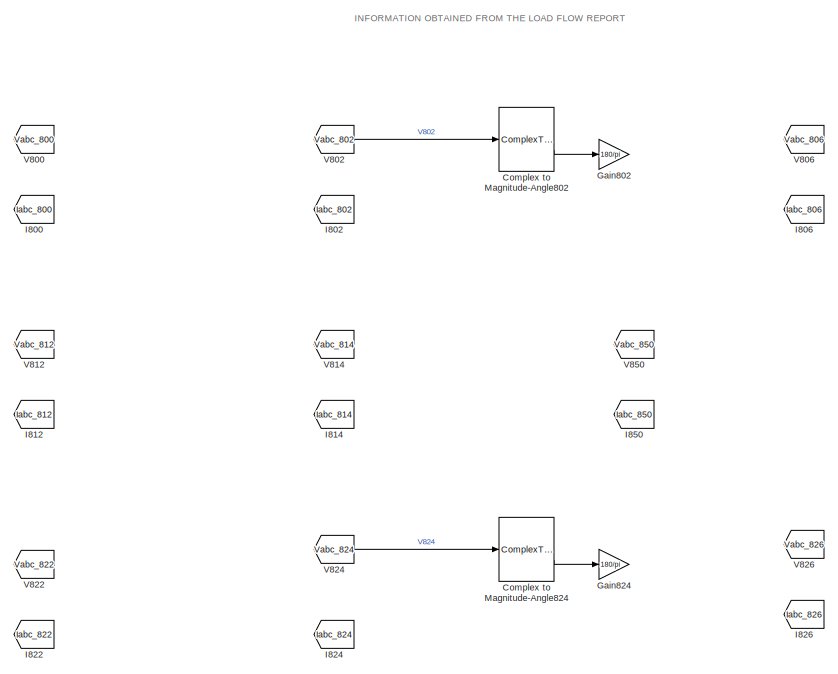
[diagram: Power-Flow - part 1/4, top left region]
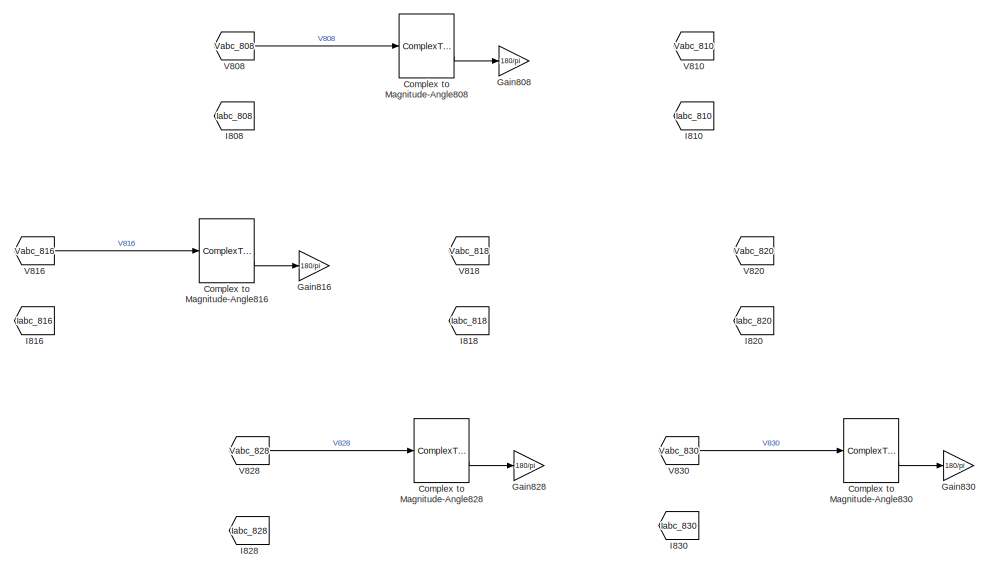
[diagram: Power-Flow - part 2/4, top right region]
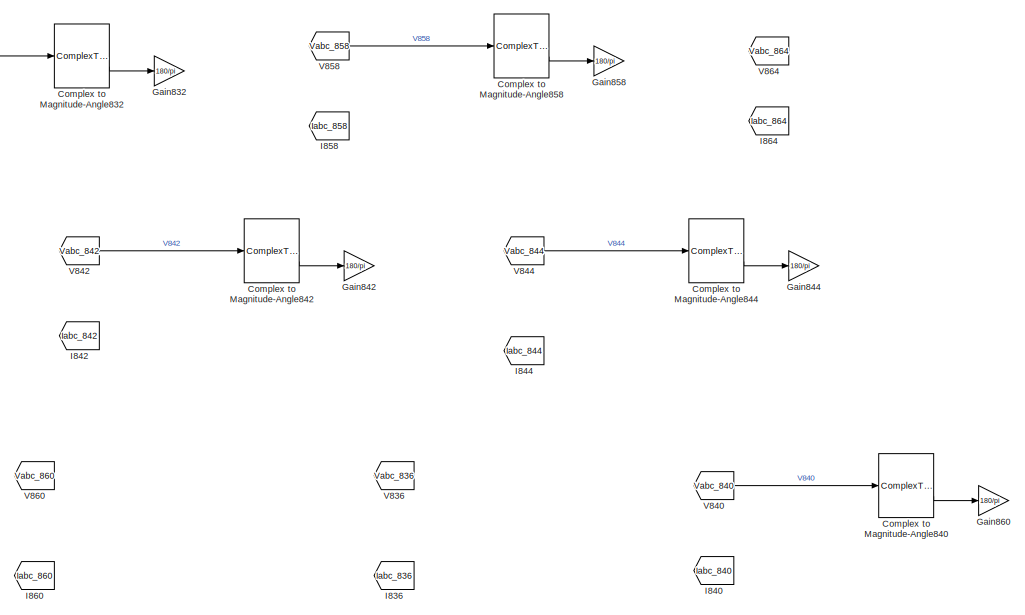
[diagram: Power-Flow - part 3/4, middle right region]
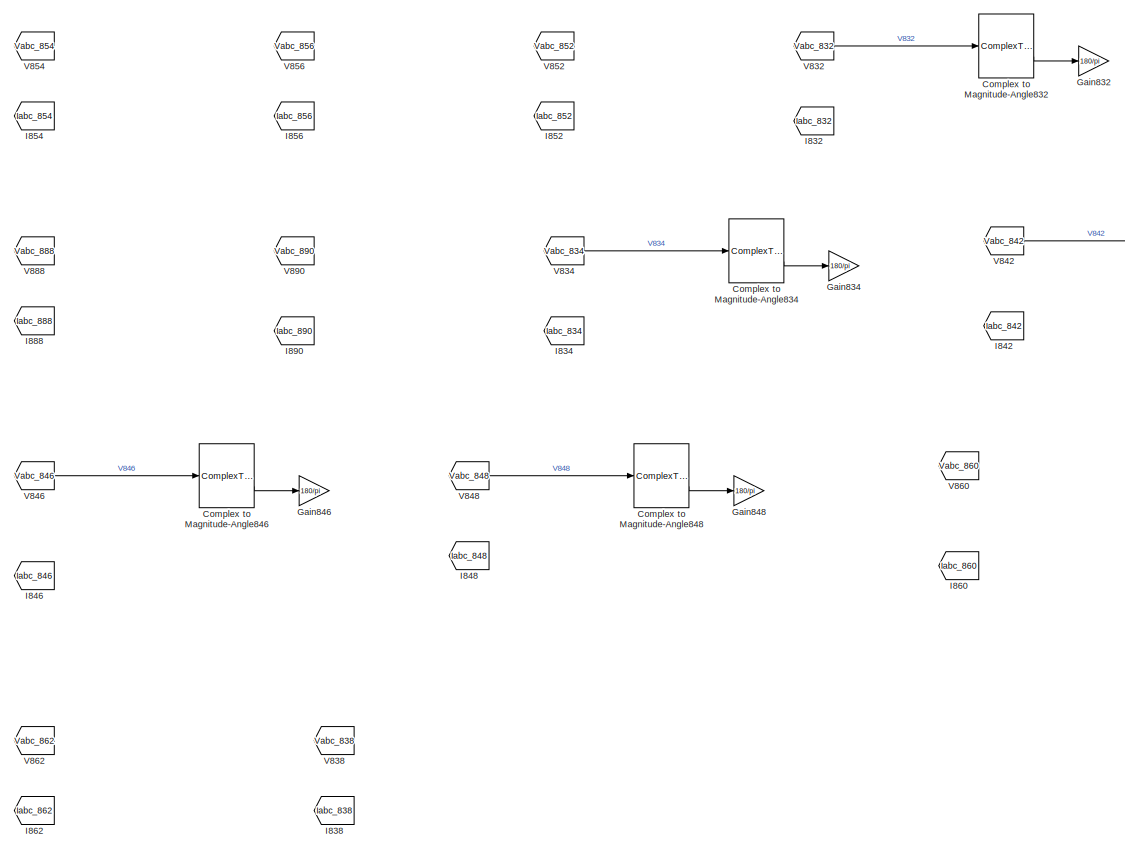
[diagram: Power-Flow - part 4/4, bottom left region]
BLOCK [SubSystem] Power-Flow
  Ports = []
  RequestExecContextInheritance = off
BLOCK [ComplexToMagnitudeAngle] Power-Flow/Complex to Magnitude-Angle802
  Commented = on
  Ports = [1, 2]
BLOCK [ComplexToMagnitudeAngle] Power-Flow/Complex to Magnitude-Angle808
  Commented = on
  Ports = [1, 2]
BLOCK [ComplexToMagnitudeAngle] Power-Flow/Complex to Magnitude-Angle816
  Commented = on
  Ports = [1, 2]
BLOCK [ComplexToMagnitudeAngle] Power-Flow/Complex to Magnitude-Angle824
  Commented = on
  Ports = [1, 2]
BLOCK [ComplexToMagnitudeAngle] Power-Flow/Complex to Magnitude-Angle828
  Commented = on
  Ports = [1, 2]
BLOCK [ComplexToMagnitudeAngle] Power-Flow/Complex to Magnitude-Angle830
  Commented = on
  Ports = [1, 2]
BLOCK [ComplexToMagnitudeAngle] Power-Flow/Complex to Magnitude-Angle832
  Commented = on
  Ports = [1, 2]
BLOCK [ComplexToMagnitudeAngle] Power-Flow/Complex to Magnitude-Angle834
  Commented = on
  Ports = [1, 2]
BLOCK [ComplexToMagnitudeAngle] Power-Flow/Complex to Magnitude-Angle840
  Commented = on
  Ports = [1, 2]
BLOCK [ComplexToMagnitudeAngle] Power-Flow/Complex to Magnitude-Angle842
  Commented = on
  Ports = [1, 2]
BLOCK [ComplexToMagnitudeAngle] Power-Flow/Complex to Magnitude-Angle844
  Commented = on
  Ports = [1, 2]
BLOCK [ComplexToMagnitudeAngle] Power-Flow/Complex to Magnitude-Angle846
  Commented = on
  Ports = [1, 2]
BLOCK [ComplexToMagnitudeAngle] Power-Flow/Complex to Magnitude-Angle848
  Commented = on
  Ports = [1, 2]
BLOCK [ComplexToMagnitudeAngle] Power-Flow/Complex to Magnitude-Angle858
  Commented = on
  Ports = [1, 2]
BLOCK [Gain] Power-Flow/Gain802
  Commented = on
  Gain = 180/pi
BLOCK [Gain] Power-Flow/Gain808
  Commented = on
  Gain = 180/pi
BLOCK [Gain] Power-Flow/Gain816
  Commented = on
  Gain = 180/pi
BLOCK [Gain] Power-Flow/Gain824
  Commented = on
  Gain = 180/pi
BLOCK [Gain] Power-Flow/Gain828
  Commented = on
  Gain = 180/pi
BLOCK [Gain] Power-Flow/Gain830
  Commented = on
  Gain = 180/pi
BLOCK [Gain] Power-Flow/Gain832
  Commented = on
  Gain = 180/pi
BLOCK [Gain] Power-Flow/Gain834
  Commented = on
  Gain = 180/pi
BLOCK [Gain] Power-Flow/Gain842
  Commented = on
  Gain = 180/pi
BLOCK [Gain] Power-Flow/Gain844
  Commented = on
  Gain = 180/pi
BLOCK [Gain] Power-Flow/Gain846
  Commented = on
  Gain = 180/pi
BLOCK [Gain] Power-Flow/Gain848
  Commented = on
  Gain = 180/pi
BLOCK [Gain] Power-Flow/Gain858
  Commented = on
  Gain = 180/pi
BLOCK [Gain] Power-Flow/Gain860
  Commented = on
  Gain = 180/pi
BLOCK [From] Power-Flow/I800
  Commented = on
  GotoTag = Iabc_800
  TagVisibility = global
BLOCK [From] Power-Flow/I802
  GotoTag = Iabc_802
  TagVisibility = global
BLOCK [From] Power-Flow/I806
  GotoTag = Iabc_806
  TagVisibility = global
BLOCK [From] Power-Flow/I808
  GotoTag = Iabc_808
  TagVisibility = global
BLOCK [From] Power-Flow/I810
  GotoTag = Iabc_810
  TagVisibility = global
BLOCK [From] Power-Flow/I812
  GotoTag = Iabc_812
  TagVisibility = global
BLOCK [From] Power-Flow/I814
  GotoTag = Iabc_814
  TagVisibility = global
BLOCK [From] Power-Flow/I816
  GotoTag = Iabc_816
  TagVisibility = global
BLOCK [From] Power-Flow/I818
  GotoTag = Iabc_818
  TagVisibility = global
BLOCK [From] Power-Flow/I820
  GotoTag = Iabc_820
  TagVisibility = global
BLOCK [From] Power-Flow/I822
  GotoTag = Iabc_822
  TagVisibility = global
BLOCK [From] Power-Flow/I824
  GotoTag = Iabc_824
  TagVisibility = global
BLOCK [From] Power-Flow/I826
  GotoTag = Iabc_826
  TagVisibility = global
BLOCK [From] Power-Flow/I828
  GotoTag = Iabc_828
  TagVisibility = global
BLOCK [From] Power-Flow/I830
  GotoTag = Iabc_830
  TagVisibility = global
BLOCK [From] Power-Flow/I832
  GotoTag = Iabc_832
  TagVisibility = global
BLOCK [From] Power-Flow/I834
  GotoTag = Iabc_834
  TagVisibility = global
BLOCK [From] Power-Flow/I836
  GotoTag = Iabc_836
  TagVisibility = global
BLOCK [From] Power-Flow/I838
  GotoTag = Iabc_838
  TagVisibility = global
BLOCK [From] Power-Flow/I840
  GotoTag = Iabc_840
  TagVisibility = global
BLOCK [From] Power-Flow/I842
  GotoTag = Iabc_842
  TagVisibility = global
BLOCK [From] Power-Flow/I844
  GotoTag = Iabc_844
  TagVisibility = global
BLOCK [From] Power-Flow/I846
  GotoTag = Iabc_846
  TagVisibility = global
BLOCK [From] Power-Flow/I848
  GotoTag = Iabc_848
  TagVisibility = global
BLOCK [From] Power-Flow/I850
  GotoTag = Iabc_850
  TagVisibility = global
BLOCK [From] Power-Flow/I852
  GotoTag = Iabc_852
  TagVisibility = global
BLOCK [From] Power-Flow/I854
  GotoTag = Iabc_854
  TagVisibility = global
BLOCK [From] Power-Flow/I856
  GotoTag = Iabc_856
  TagVisibility = global
BLOCK [From] Power-Flow/I858
  GotoTag = Iabc_858
  TagVisibility = global
BLOCK [From] Power-Flow/I860
  GotoTag = Iabc_860
  TagVisibility = global
BLOCK [From] Power-Flow/I862
  GotoTag = Iabc_862
  TagVisibility = global
BLOCK [From] Power-Flow/I864
  GotoTag = Iabc_864
  TagVisibility = global
BLOCK [From] Power-Flow/I888
  GotoTag = Iabc_888
  TagVisibility = global
BLOCK [From] Power-Flow/I890
  GotoTag = Iabc_890
  TagVisibility = global
BLOCK [From] Power-Flow/V800
  Commented = on
  GotoTag = Vabc_800
  TagVisibility = global
BLOCK [From] Power-Flow/V802
  GotoTag = Vabc_802
  TagVisibility = global
BLOCK [From] Power-Flow/V806
  GotoTag = Vabc_806
  TagVisibility = global
BLOCK [From] Power-Flow/V808
  GotoTag = Vabc_808
  TagVisibility = global
BLOCK [From] Power-Flow/V810
  GotoTag = Vabc_810
  TagVisibility = global
BLOCK [From] Power-Flow/V812
  GotoTag = Vabc_812
  TagVisibility = global
BLOCK [From] Power-Flow/V814
  GotoTag = Vabc_814
  TagVisibility = global
BLOCK [From] Power-Flow/V816
  GotoTag = Vabc_816
  TagVisibility = global
BLOCK [From] Power-Flow/V818
  GotoTag = Vabc_818
  TagVisibility = global
BLOCK [From] Power-Flow/V820
  GotoTag = Vabc_820
  TagVisibility = global
BLOCK [From] Power-Flow/V822
  GotoTag = Vabc_822
  TagVisibility = global
BLOCK [From] Power-Flow/V824
  GotoTag = Vabc_824
  TagVisibility = global
BLOCK [From] Power-Flow/V826
  GotoTag = Vabc_826
  TagVisibility = global
BLOCK [From] Power-Flow/V828
  GotoTag = Vabc_828
  TagVisibility = global
BLOCK [From] Power-Flow/V830
  GotoTag = Vabc_830
  TagVisibility = global
BLOCK [From] Power-Flow/V832
  GotoTag = Vabc_832
  TagVisibility = global
BLOCK [From] Power-Flow/V834
  GotoTag = Vabc_834
  TagVisibility = global
BLOCK [From] Power-Flow/V836
  GotoTag = Vabc_836
  TagVisibility = global
BLOCK [From] Power-Flow/V838
  GotoTag = Vabc_838
  TagVisibility = global
BLOCK [From] Power-Flow/V840
  GotoTag = Vabc_840
  TagVisibility = global
BLOCK [From] Power-Flow/V842
  GotoTag = Vabc_842
  TagVisibility = global
BLOCK [From] Power-Flow/V844
  GotoTag = Vabc_844
  TagVisibility = global
BLOCK [From] Power-Flow/V846
  GotoTag = Vabc_846
  TagVisibility = global
BLOCK [From] Power-Flow/V848
  GotoTag = Vabc_848
  TagVisibility = global
BLOCK [From] Power-Flow/V850
  GotoTag = Vabc_850
  TagVisibility = global
BLOCK [From] Power-Flow/V852
  GotoTag = Vabc_852
  TagVisibility = global
BLOCK [From] Power-Flow/V854
  GotoTag = Vabc_854
  TagVisibility = global
BLOCK [From] Power-Flow/V856
  GotoTag = Vabc_856
  TagVisibility = global
BLOCK [From] Power-Flow/V858
  GotoTag = Vabc_858
  TagVisibility = global
BLOCK [From] Power-Flow/V860
  GotoTag = Vabc_860
  TagVisibility = global
BLOCK [From] Power-Flow/V862
  GotoTag = Vabc_862
  TagVisibility = global
BLOCK [From] Power-Flow/V864
  GotoTag = Vabc_864
  TagVisibility = global
BLOCK [From] Power-Flow/V888
  GotoTag = Vabc_888
  TagVisibility = global
BLOCK [From] Power-Flow/V890
  GotoTag = Vabc_890
  TagVisibility = global
BLOCK [Reference] XF-10 24.9kV // 4.16kV  REF=powerlib/Elements/Three-Phase
Transformer
(Two Windings)
  Ports = [0, 0, 0, 0, 0, 3, 3]
  SourceBlock = powerlib/Elements/Three-Phase\nTransformer\n(Two Windings)
  SourceProductBaseCode = PS
  SourceType = Three-Phase Transformer (Two Windings)
BLOCK [Reference] powergui  REF=powerlib/powergui
  Ports = []
  Priority = 1
  SourceBlock = powerlib/powergui
  SourceProductBaseCode = PS
  SourceType = PSB option menu block
ANNOTATION (root): Add a breaker between 818 and 820.
ANNOTATION (root): Add a breaker between 832 and 858.
ANNOTATION (root): Add a breaker between 834 and 842.
ANNOTATION (root): Add a breaker between 836 and 862.
ANNOTATION (root): Add a breaker between 850 and 816.
ANNOTATION (root): IEEE 34 Node Test Feeder
ANNOTATION Power-Flow: INFORMATION OBTAINED FROM THE LOAD FLOW REPORT
LINE Constant1:1 -> Breaker850-816:1
LINE Constant2:1 -> Breaker818-820:1
LINE Constant3:1 -> Breaker832-858:1
LINE Constant4:1 -> Breaker834-842:1
LINE Constant5:1 -> Breaker836-862:1
LINE Power-Flow/Complex to Magnitude-Angle802:2 -> Power-Flow/Gain802:1
LINE Power-Flow/Complex to Magnitude-Angle808:2 -> Power-Flow/Gain808:1
LINE Power-Flow/Complex to Magnitude-Angle816:2 -> Power-Flow/Gain816:1
LINE Power-Flow/Complex to Magnitude-Angle824:2 -> Power-Flow/Gain824:1
LINE Power-Flow/Complex to Magnitude-Angle828:2 -> Power-Flow/Gain828:1
LINE Power-Flow/Complex to Magnitude-Angle830:2 -> Power-Flow/Gain830:1
LINE Power-Flow/Complex to Magnitude-Angle832:2 -> Power-Flow/Gain832:1
LINE Power-Flow/Complex to Magnitude-Angle834:2 -> Power-Flow/Gain834:1
LINE Power-Flow/Complex to Magnitude-Angle840:2 -> Power-Flow/Gain860:1
LINE Power-Flow/Complex to Magnitude-Angle842:2 -> Power-Flow/Gain842:1
LINE Power-Flow/Complex to Magnitude-Angle844:2 -> Power-Flow/Gain844:1
LINE Power-Flow/Complex to Magnitude-Angle846:2 -> Power-Flow/Gain846:1
LINE Power-Flow/Complex to Magnitude-Angle848:2 -> Power-Flow/Gain848:1
LINE Power-Flow/Complex to Magnitude-Angle858:2 -> Power-Flow/Gain858:1
LINE Power-Flow/V802:1 -> Power-Flow/Complex to Magnitude-Angle802:1
LINE Power-Flow/V808:1 -> Power-Flow/Complex to Magnitude-Angle808:1
LINE Power-Flow/V816:1 -> Power-Flow/Complex to Magnitude-Angle816:1
LINE Power-Flow/V824:1 -> Power-Flow/Complex to Magnitude-Angle824:1
LINE Power-Flow/V828:1 -> Power-Flow/Complex to Magnitude-Angle828:1
LINE Power-Flow/V830:1 -> Power-Flow/Complex to Magnitude-Angle830:1
LINE Power-Flow/V832:1 -> Power-Flow/Complex to Magnitude-Angle832:1
LINE Power-Flow/V834:1 -> Power-Flow/Complex to Magnitude-Angle834:1
LINE Power-Flow/V840:1 -> Power-Flow/Complex to Magnitude-Angle840:1
LINE Power-Flow/V842:1 -> Power-Flow/Complex to Magnitude-Angle842:1
LINE Power-Flow/V844:1 -> Power-Flow/Complex to Magnitude-Angle844:1
LINE Power-Flow/V846:1 -> Power-Flow/Complex to Magnitude-Angle846:1
LINE Power-Flow/V848:1 -> Power-Flow/Complex to Magnitude-Angle848:1
LINE Power-Flow/V858:1 -> Power-Flow/Complex to Magnitude-Angle858:1
PLINE 800 gen:RConn1 -- Load Flow Bus:LConn1
PLINE 800 gen:RConn2 -- Load Flow Bus:LConn2
PLINE 800 gen:RConn3 -- Load Flow Bus:LConn3
PLINE 800-802:LConn1 -- Load Flow Bus:RConn1
PLINE 800-802:LConn2 -- Load Flow Bus:RConn2
PLINE 800-802:LConn3 -- Load Flow Bus:RConn3
PLINE 800-802:RConn1 -- Load Flow Bus1:LConn1
PLINE 800-802:RConn2 -- Load Flow Bus1:LConn2
PLINE 800-802:RConn3 -- Load Flow Bus1:LConn3
PNET net1: 802 Yg PQ:LConn1 -- 802-806:LConn1 -- 802:RConn1
PNET net2: 802 Yg PQ:LConn2 -- 802-806:LConn2 -- 802:RConn2
PNET net3: 802 Yg PQ:LConn3 -- 802-806:LConn3 -- 802:RConn3
PNET net4: 802-806:RConn1 -- 806 Yg PQ:LConn1 -- Load Flow Bus2:LConn1
PNET net5: 802-806:RConn2 -- 806 Yg PQ:LConn2 -- Load Flow Bus2:LConn2
PNET net6: 802-806:RConn3 -- 806 Yg PQ:LConn3 -- Load Flow Bus2:LConn3
PLINE 802:LConn1 -- Load Flow Bus1:RConn1
PLINE 802:LConn2 -- Load Flow Bus1:RConn2
PLINE 802:LConn3 -- Load Flow Bus1:RConn3
PLINE 806-808:LConn1 -- 806:RConn1
PLINE 806-808:LConn2 -- 806:RConn2
PLINE 806-808:LConn3 -- 806:RConn3
PLINE 806-808:RConn1 -- Load Flow Bus3:LConn1
PLINE 806-808:RConn2 -- Load Flow Bus3:LConn2
PLINE 806-808:RConn3 -- Load Flow Bus3:LConn3
PLINE 806:LConn1 -- Load Flow Bus2:RConn1
PLINE 806:LConn2 -- Load Flow Bus2:RConn2
PLINE 806:LConn3 -- Load Flow Bus2:RConn3
PNET net7: 808 Y-I:LConn1 -- 808-810:LConn1 -- 808-812:LConn2 -- 808:RConn2
PLINE 808 Y-I:RConn1 -- Ground:LConn1
PLINE 808-810:RConn1 -- 810:LConn2
PLINE 808-812:LConn1 -- 808:RConn1
PLINE 808-812:LConn3 -- 808:RConn3
PLINE 808-812:RConn1 -- Load Flow Bus4:LConn1
PLINE 808-812:RConn2 -- Load Flow Bus4:LConn2
PLINE 808-812:RConn3 -- Load Flow Bus4:LConn3
PLINE 808:LConn1 -- Load Flow Bus3:RConn1
PLINE 808:LConn2 -- Load Flow Bus3:RConn2
PLINE 808:LConn3 -- Load Flow Bus3:RConn3
PNET net8: 810 Y-I:LConn1 -- 810:RConn2 -- Load Flow Bus6:LConn1
PLINE 810 Y-I:RConn1 -- Ground1:LConn1
PNET net9: 810:LConn1 -- 810:LConn3 -- 810:RConn1 -- 810:RConn3 -- Ground7:LConn1
PLINE 812-814:LConn1 -- 812:RConn1
PLINE 812-814:LConn2 -- 812:RConn2
PLINE 812-814:LConn3 -- 812:RConn3
PLINE 812-814:RConn1 -- Load Flow Bus5:LConn1
PLINE 812-814:RConn2 -- Load Flow Bus5:LConn2
PLINE 812-814:RConn3 -- Load Flow Bus5:LConn3
PLINE 812:LConn1 -- Load Flow Bus4:RConn1
PLINE 812:LConn2 -- Load Flow Bus4:RConn2
PLINE 812:LConn3 -- Load Flow Bus4:RConn3
PLINE 814-850:LConn1 -- 814:RConn1
PLINE 814-850:LConn2 -- 814:RConn2
PLINE 814-850:LConn3 -- 814:RConn3
PLINE 814-850:RConn1 -- Load Flow Bus7:LConn1
PLINE 814-850:RConn2 -- Load Flow Bus7:LConn2
PLINE 814-850:RConn3 -- Load Flow Bus7:LConn3
PLINE 814:LConn1 -- Load Flow Bus5:RConn1
PLINE 814:LConn2 -- Load Flow Bus5:RConn2
PLINE 814:LConn3 -- Load Flow Bus5:RConn3
PNET net10: 816 D-I:LConn1 -- 816-818:LConn1 -- 816-824:LConn1 -- 816:RConn1
PNET net11: 816 D-I:LConn2 -- 816-824:LConn2 -- 816:RConn2
PNET net12: 816 D-I:LConn3 -- 816-824:LConn3 -- 816:RConn3
PLINE 816-818:RConn1 -- Load Flow Bus11:LConn1
PNET net13: 816-824:RConn1 -- 824 D-I:LConn1 -- Load Flow Bus9:LConn1
PNET net14: 816-824:RConn2 -- 824 D-I:LConn2 -- Load Flow Bus9:LConn2
PNET net15: 816-824:RConn3 -- 824 D-I:LConn3 -- Load Flow Bus9:LConn3
PLINE 816:LConn1 -- Load Flow Bus8:RConn1
PLINE 816:LConn2 -- Load Flow Bus8:RConn2
PLINE 816:LConn3 -- Load Flow Bus8:RConn3
PNET net16: 818 Y-Z:LConn1 -- 818-820:LConn1 -- Breaker818-820:RConn1
PLINE 818 Y-Z:RConn1 -- Ground2:LConn1
PNET net17: 818-820:RConn1 -- 820 Y-Z:LConn1 -- Load Flow Bus12:LConn1
PLINE 818:LConn1 -- Load Flow Bus11:RConn1
PNET net18: 818:LConn2 -- 818:LConn3 -- 818:RConn2 -- 818:RConn3 -- Ground6:LConn1
PLINE 818:RConn1 -- Breaker818-820:LConn1
PNET net19: 820 Y-PQ:LConn1 -- 820-822:LConn1 -- 820:RConn1
PLINE 820 Y-PQ:RConn1 -- Ground4:LConn1
PLINE 820 Y-Z:RConn1 -- Ground3:LConn1
PLINE 820-822:RConn1 -- 822:LConn1
PLINE 820:LConn1 -- Load Flow Bus12:RConn1
PNET net20: 820:LConn2 -- 820:LConn3 -- 820:RConn2 -- 820:RConn3 -- Ground16:LConn1
PNET net21: 822 Y-PQ:LConn1 -- 822:RConn1 -- Load Flow Bus13:LConn1
PLINE 822 Y-PQ:RConn1 -- Ground5:LConn1
PNET net22: 822:LConn2 -- 822:LConn3 -- 822:RConn2 -- 822:RConn3 -- Ground17:LConn1
PNET net23: 824 Y-I:LConn1 -- 824 Y-PQ:LConn2 -- 824-826:LConn1 -- 824-828:LConn2 -- 824:RConn2
PLINE 824 Y-I:RConn1 -- Ground8:LConn1
PNET net24: 824 Y-PQ:LConn1 -- 824-828:LConn1 -- 824:RConn1
PNET net25: 824 Y-PQ:LConn3 -- 824-828:LConn3 -- 824:RConn3
PLINE 824-826:RConn1 -- 826:LConn2
PNET net26: 824-828:RConn1 -- 828 Y-PQ:LConn1 -- Load Flow Bus14:LConn1
PNET net27: 824-828:RConn2 -- 828 Y-PQ:LConn2 -- Load Flow Bus14:LConn2
PNET net28: 824-828:RConn3 -- 828 Y-PQ:LConn3 -- Load Flow Bus14:LConn3
PLINE 824:LConn1 -- Load Flow Bus9:RConn1
PLINE 824:LConn2 -- Load Flow Bus9:RConn2
PLINE 824:LConn3 -- Load Flow Bus9:RConn3
PNET net29: 826 Y-I:LConn1 -- 826:RConn2 -- Load Flow Bus10:LConn1
PLINE 826 Y-I:RConn1 -- Ground9:LConn1
PNET net30: 826:LConn1 -- 826:LConn3 -- 826:RConn1 -- 826:RConn3 -- Ground18:LConn1
PNET net31: 828 Y-PQ1:LConn1 -- 828-830:LConn1 -- 828:RConn1
PNET net32: 828 Y-PQ1:LConn2 -- 828-830:LConn2 -- 828:RConn2
PNET net33: 828 Y-PQ1:LConn3 -- 828-830:LConn3 -- 828:RConn3
PNET net34: 828-830:RConn1 -- 830 Y-PQ:LConn1 -- Load Flow Bus15:LConn1
PNET net35: 828-830:RConn2 -- 830 Y-PQ:LConn2 -- Load Flow Bus15:LConn2
PNET net36: 828-830:RConn3 -- 830 Y-PQ:LConn3 -- Load Flow Bus15:LConn3
PLINE 828:LConn1 -- Load Flow Bus14:RConn1
PLINE 828:LConn2 -- Load Flow Bus14:RConn2
PLINE 828:LConn3 -- Load Flow Bus14:RConn3
PNET net37: 830 D-Z:LConn1 -- 830-854:LConn1 -- 830:RConn1
PNET net38: 830 D-Z:LConn2 -- 830-854:LConn2 -- 830:RConn2
PNET net39: 830 D-Z:LConn3 -- 830-854:LConn3 -- 830:RConn3
PLINE 830-854:RConn1 -- Load Flow Bus16:LConn1
PLINE 830-854:RConn2 -- Load Flow Bus16:LConn2
PLINE 830-854:RConn3 -- Load Flow Bus16:LConn3
PLINE 830:LConn1 -- Load Flow Bus15:RConn1
PLINE 830:LConn2 -- Load Flow Bus15:RConn2
PLINE 830:LConn3 -- Load Flow Bus15:RConn3
PNET net40: 832 D-Z:LConn1 -- 832-858:LConn1 -- Breaker832-858:LConn1
PNET net41: 832 D-Z:LConn2 -- 832-858:LConn2 -- Breaker832-858:LConn2
PNET net42: 832 D-Z:LConn3 -- 832-858:LConn3 -- Breaker832-858:LConn3
PNET net43: 832-858:RConn1 -- 858 D-Z:LConn1 -- Load Flow Bus22:LConn1
PNET net44: 832-858:RConn2 -- 858 D-Z:LConn2 -- Load Flow Bus22:LConn2
PNET net45: 832-858:RConn3 -- 858 D-Z:LConn3 -- Load Flow Bus22:LConn3
PLINE 832:LConn1 -- Load Flow Bus19:RConn1
PLINE 832:LConn2 -- Load Flow Bus19:RConn2
PLINE 832:LConn3 -- Load Flow Bus19:RConn3
PNET net46: 832:RConn1 -- Breaker832-858:RConn1 -- XF-10 24.9kV // 4.16kV:LConn1
PNET net47: 832:RConn2 -- Breaker832-858:RConn2 -- XF-10 24.9kV // 4.16kV:LConn2
PNET net48: 832:RConn3 -- Breaker832-858:RConn3 -- XF-10 24.9kV // 4.16kV:LConn3
PNET net49: 834 D-PQ:LConn1 -- 858-834:RConn1 -- Load Flow Bus24:LConn1
PNET net50: 834 D-PQ:LConn2 -- 858-834:RConn2 -- Load Flow Bus24:LConn2
PNET net51: 834 D-PQ:LConn3 -- 858-834:RConn3 -- Load Flow Bus24:LConn3
PNET net52: 834 D-Z:LConn1 -- 834-860:LConn1 -- 834:RConn1 -- Breaker834-842:RConn1
PNET net53: 834 D-Z:LConn2 -- 834-860:LConn2 -- 834:RConn2 -- Breaker834-842:RConn2
PNET net54: 834 D-Z:LConn3 -- 834-860:LConn3 -- 834:RConn3 -- Breaker834-842:RConn3
PLINE 834-842:LConn1 -- Breaker834-842:LConn1
PLINE 834-842:LConn2 -- Breaker834-842:LConn2
PLINE 834-842:LConn3 -- Breaker834-842:LConn3
PLINE 834-842:RConn1 -- Load Flow Bus30:LConn1
PLINE 834-842:RConn2 -- Load Flow Bus30:LConn2
PLINE 834-842:RConn3 -- Load Flow Bus30:LConn3
PNET net55: 834-860:RConn1 -- 860 D-Z:LConn1 -- Load Flow Bus25:LConn1
PNET net56: 834-860:RConn2 -- 860 D-Z:LConn2 -- Load Flow Bus25:LConn2
PNET net57: 834-860:RConn3 -- 860 D-Z:LConn3 -- Load Flow Bus25:LConn3
PLINE 834:LConn1 -- Load Flow Bus24:RConn1
PLINE 834:LConn2 -- Load Flow Bus24:RConn2
PLINE 834:LConn3 -- Load Flow Bus24:RConn3
PNET net58: 836 D-I:LConn1 -- 836-840:LConn1 -- 836:RConn1 -- Breaker836-862:LConn1
PNET net59: 836 D-I:LConn2 -- 836-840:LConn2 -- 836:RConn2 -- Breaker836-862:LConn2
PNET net60: 836 D-I:LConn3 -- 836-840:LConn3 -- 836:RConn3 -- Breaker836-862:LConn3
PNET net61: 836 D-PQ:LConn1 -- 860-836:RConn1 -- Load Flow Bus26:LConn1
PNET net62: 836 D-PQ:LConn2 -- 860-836:RConn2 -- Load Flow Bus26:LConn2
PNET net63: 836 D-PQ:LConn3 -- 860-836:RConn3 -- Load Flow Bus26:LConn3
PNET net64: 836-840:RConn1 -- 840 D-I:LConn1 -- Load Flow Bus27:LConn1
PNET net65: 836-840:RConn2 -- 840 D-I:LConn2 -- Load Flow Bus27:LConn2
PNET net66: 836-840:RConn3 -- 840 D-I:LConn3 -- Load Flow Bus27:LConn3
PLINE 836-862:LConn1 -- Breaker836-862:RConn1
PLINE 836-862:LConn2 -- Breaker836-862:RConn2
PLINE 836-862:LConn3 -- Breaker836-862:RConn3
PLINE 836-862:RConn1 -- 862:LConn1
PLINE 836-862:RConn2 -- 862:LConn2
PLINE 836-862:RConn3 -- 862:LConn3
PLINE 836:LConn1 -- Load Flow Bus26:RConn1
PLINE 836:LConn2 -- Load Flow Bus26:RConn2
PLINE 836:LConn3 -- Load Flow Bus26:RConn3
PNET net67: 838 Y-PQ:LConn1 -- 838:RConn2 -- Load Flow Bus29:LConn1
PLINE 838 Y-PQ:RConn1 -- Ground15:LConn1
PNET net68: 838:LConn1 -- 838:LConn3 -- 838:RConn1 -- 838:RConn3 -- Ground21:LConn1
PLINE 838:LConn2 -- 862-838:RConn1
PLINE 840 Y-I:LConn1 -- 840:RConn1
PLINE 840 Y-I:LConn2 -- 840:RConn2
PLINE 840 Y-I:LConn3 -- 840:RConn3
PLINE 840:LConn1 -- Load Flow Bus27:RConn1
PLINE 840:LConn2 -- Load Flow Bus27:RConn2
PLINE 840:LConn3 -- Load Flow Bus27:RConn3
PNET net69: 842 Y-PQ:LConn1 -- 842-844:LConn1 -- 842:RConn1
PNET net70: 842 Y-PQ:LConn2 -- 842-844:LConn2 -- 842:RConn2
PNET net71: 842 Y-PQ:LConn3 -- 842-844:LConn3 -- 842:RConn3
PNET net72: 842-844:RConn1 -- 844 Y-PQ:LConn1 -- Load Flow Bus31:LConn1
PNET net73: 842-844:RConn2 -- 844 Y-PQ:LConn2 -- Load Flow Bus31:LConn2
PNET net74: 842-844:RConn3 -- 844 Y-PQ:LConn3 -- Load Flow Bus31:LConn3
PLINE 842:LConn1 -- Load Flow Bus30:RConn1
PLINE 842:LConn2 -- Load Flow Bus30:RConn2
PLINE 842:LConn3 -- Load Flow Bus30:RConn3
PNET net75: 844 Y-PQ1:LConn1 -- 844 Y-Z1:LConn1 -- 844 Y-Z:LConn1 -- 844-846:LConn1 -- 844:RConn1
PNET net76: 844 Y-PQ1:LConn2 -- 844 Y-Z1:LConn2 -- 844 Y-Z:LConn2 -- 844-846:LConn2 -- 844:RConn2
PNET net77: 844 Y-PQ1:LConn3 -- 844 Y-Z1:LConn3 -- 844 Y-Z:LConn3 -- 844-846:LConn3 -- 844:RConn3
PNET net78: 844-846:RConn1 -- 846 Y-PQ:LConn1 -- Load Flow Bus32:LConn1
PNET net79: 844-846:RConn2 -- 846 Y-PQ:LConn2 -- Load Flow Bus32:LConn2
PNET net80: 844-846:RConn3 -- 846 Y-PQ:LConn3 -- Load Flow Bus32:LConn3
PLINE 844:LConn1 -- Load Flow Bus31:RConn1
PLINE 844:LConn2 -- Load Flow Bus31:RConn2
PLINE 844:LConn3 -- Load Flow Bus31:RConn3
PNET net81: 846 Y-PQ1:LConn1 -- 846-848:LConn1 -- 846:RConn1
PNET net82: 846 Y-PQ1:LConn2 -- 846-848:LConn2 -- 846:RConn2
PNET net83: 846 Y-PQ1:LConn3 -- 846-848:LConn3 -- 846:RConn3
PNET net84: 846-848:RConn1 -- 848 Y-PQ:LConn1 -- Load Flow Bus33:LConn1
PNET net85: 846-848:RConn2 -- 848 Y-PQ:LConn2 -- Load Flow Bus33:LConn2
PNET net86: 846-848:RConn3 -- 848 Y-PQ:LConn3 -- Load Flow Bus33:LConn3
PLINE 846:LConn1 -- Load Flow Bus32:RConn1
PLINE 846:LConn2 -- Load Flow Bus32:RConn2
PLINE 846:LConn3 -- Load Flow Bus32:RConn3
PNET net87: 848 D-PQ:LConn1 -- 848 D-Z:LConn1 -- 848:RConn1
PNET net88: 848 D-PQ:LConn2 -- 848 D-Z:LConn2 -- 848:RConn2
PNET net89: 848 D-PQ:LConn3 -- 848 D-Z:LConn3 -- 848:RConn3
PLINE 848:LConn1 -- Load Flow Bus33:RConn1
PLINE 848:LConn2 -- Load Flow Bus33:RConn2
PLINE 848:LConn3 -- Load Flow Bus33:RConn3
PLINE 850-816:LConn1 -- Breaker850-816:LConn3
PLINE 850-816:LConn2 -- Breaker850-816:LConn2
PLINE 850-816:LConn3 -- Breaker850-816:LConn1
PLINE 850-816:RConn1 -- Load Flow Bus8:LConn1
PLINE 850-816:RConn2 -- Load Flow Bus8:LConn2
PLINE 850-816:RConn3 -- Load Flow Bus8:LConn3
PLINE 850:LConn1 -- Load Flow Bus7:RConn1
PLINE 850:LConn2 -- Load Flow Bus7:RConn2
PLINE 850:LConn3 -- Load Flow Bus7:RConn3
PLINE 850:RConn1 -- Breaker850-816:RConn3
PLINE 850:RConn2 -- Breaker850-816:RConn2
PLINE 850:RConn3 -- Breaker850-816:RConn1
PLINE 852-832:LConn1 -- 852:RConn1
PLINE 852-832:LConn2 -- 852:RConn2
PLINE 852-832:LConn3 -- 852:RConn3
PLINE 852-832:RConn1 -- Load Flow Bus19:LConn1
PLINE 852-832:RConn2 -- Load Flow Bus19:LConn2
PLINE 852-832:RConn3 -- Load Flow Bus19:LConn3
PLINE 852:LConn1 -- Load Flow Bus18:RConn1
PLINE 852:LConn2 -- Load Flow Bus18:RConn2
PLINE 852:LConn3 -- Load Flow Bus18:RConn3
PNET net90: 854 Y-PQ:LConn1 -- 854-852:LConn2 -- 854-856:LConn1 -- 854:RConn2
PLINE 854 Y-PQ:RConn1 -- Ground10:LConn1
PLINE 854-852:LConn1 -- 854:RConn1
PLINE 854-852:LConn3 -- 854:RConn3
PLINE 854-852:RConn1 -- Load Flow Bus18:LConn1
PLINE 854-852:RConn2 -- Load Flow Bus18:LConn2
PLINE 854-852:RConn3 -- Load Flow Bus18:LConn3
PLINE 854-856:RConn1 -- 856:LConn2
PLINE 854:LConn1 -- Load Flow Bus16:RConn1
PLINE 854:LConn2 -- Load Flow Bus16:RConn2
PLINE 854:LConn3 -- Load Flow Bus16:RConn3
PNET net91: 856 Y-PQ:LConn1 -- 856:RConn2 -- Load Flow Bus17:LConn1
PLINE 856 Y-PQ:RConn1 -- Ground11:LConn1
PNET net92: 856:LConn1 -- 856:LConn3 -- 856:RConn1 -- 856:RConn3 -- Ground19:LConn1
PNET net93: 858 D-PQ:LConn1 -- 858 Y-PQ:LConn1 -- 858-834:LConn1 -- 858-864:LConn1 -- 858:RConn1
PNET net94: 858 D-PQ:LConn2 -- 858-834:LConn2 -- 858:RConn2
PNET net95: 858 D-PQ:LConn3 -- 858-834:LConn3 -- 858:RConn3
PLINE 858 Y-PQ:RConn1 -- Ground12:LConn1
PLINE 858-864:RConn1 -- 864:LConn1
PLINE 858:LConn1 -- Load Flow Bus22:RConn1
PLINE 858:LConn2 -- Load Flow Bus22:RConn2
PLINE 858:LConn3 -- Load Flow Bus22:RConn3
PNET net96: 860 D-PQ:LConn1 -- 860 Y-PQ:LConn1 -- 860-836:LConn1 -- 860:RConn1
PNET net97: 860 D-PQ:LConn2 -- 860 Y-PQ:LConn2 -- 860-836:LConn2 -- 860:RConn2
PNET net98: 860 D-PQ:LConn3 -- 860 Y-PQ:LConn3 -- 860-836:LConn3 -- 860:RConn3
PLINE 860:LConn1 -- Load Flow Bus25:RConn1
PLINE 860:LConn2 -- Load Flow Bus25:RConn2
PLINE 860:LConn3 -- Load Flow Bus25:RConn3
PNET net99: 862 Y-PQ:LConn1 -- 862-838:LConn1 -- Load Flow Bus36:RConn1
PLINE 862 Y-PQ:RConn1 -- Ground14:LConn1
PLINE 862:RConn1 -- Load Flow Bus34:LConn1
PLINE 862:RConn2 -- Load Flow Bus36:LConn1
PLINE 862:RConn3 -- Load Flow Bus35:LConn1
PNET net100: 864 Y-PQ:LConn1 -- 864:RConn1 -- Load Flow Bus23:LConn1
PLINE 864 Y-PQ:RConn1 -- Ground13:LConn1
PNET net101: 864:LConn2 -- 864:LConn3 -- 864:RConn2 -- 864:RConn3 -- Ground20:LConn1
PLINE 888-890:LConn1 -- 888:RConn1
PLINE 888-890:LConn2 -- 888:RConn2
PLINE 888-890:LConn3 -- 888:RConn3
PLINE 888-890:RConn1 -- Load Flow Bus21:LConn1
PLINE 888-890:RConn2 -- Load Flow Bus21:LConn2
PLINE 888-890:RConn3 -- Load Flow Bus21:LConn3
PLINE 888:LConn1 -- Load Flow Bus20:RConn1
PLINE 888:LConn2 -- Load Flow Bus20:RConn2
PLINE 888:LConn3 -- Load Flow Bus20:RConn3
PLINE 890 D-I:LConn1 -- 890:RConn1
PLINE 890 D-I:LConn2 -- 890:RConn2
PLINE 890 D-I:LConn3 -- 890:RConn3
PLINE 890:LConn1 -- Load Flow Bus21:RConn1
PLINE 890:LConn2 -- Load Flow Bus21:RConn2
PLINE 890:LConn3 -- Load Flow Bus21:RConn3
PLINE Load Flow Bus20:LConn1 -- XF-10 24.9kV // 4.16kV:RConn1
PLINE Load Flow Bus20:LConn2 -- XF-10 24.9kV // 4.16kV:RConn2
PLINE Load Flow Bus20:LConn3 -- XF-10 24.9kV // 4.16kV:RConn3
note: PNET lines group multi-terminal physical nets as a canonical sorted terminal list (undirected conserving connections); 2-terminal nets keep the pairwise PLINE form
